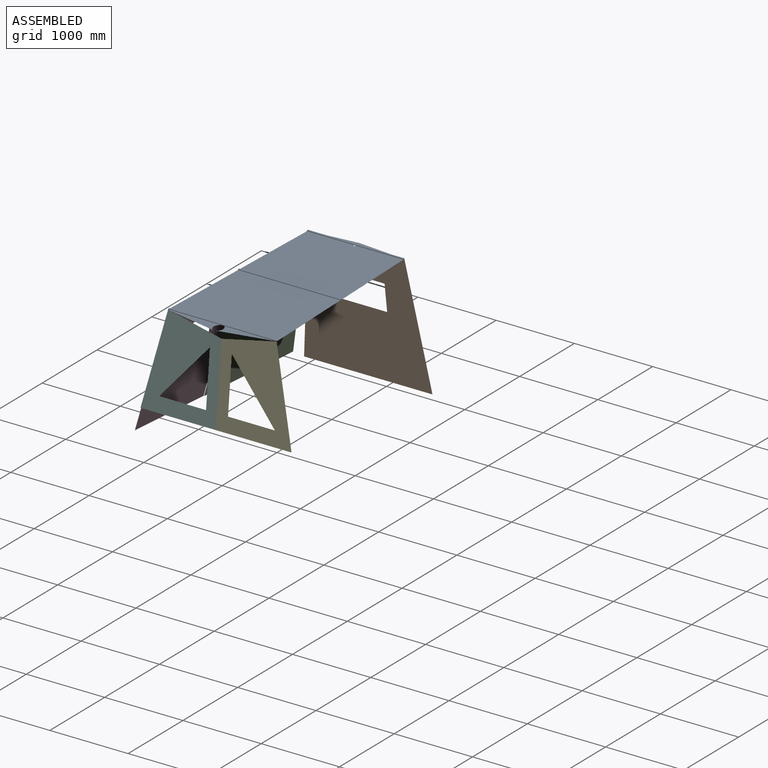
[diagram: assembled view]
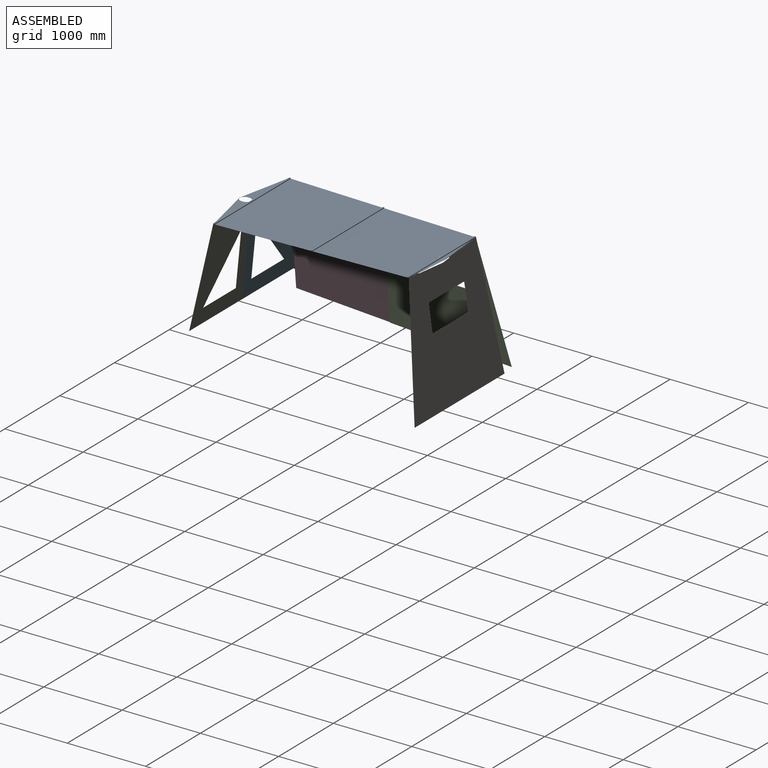
[diagram: assembled view, second angle]
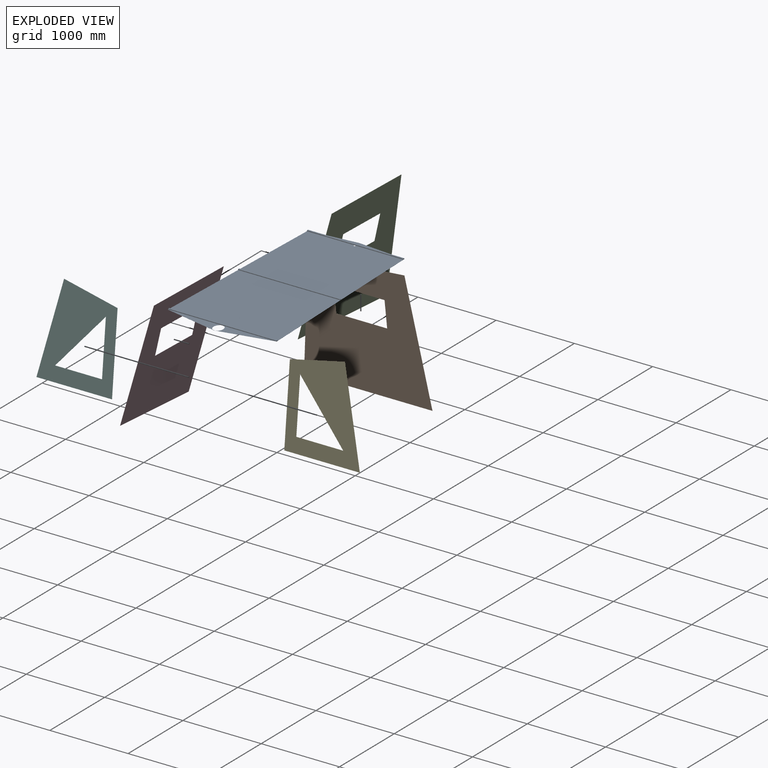
[diagram: exploded view]
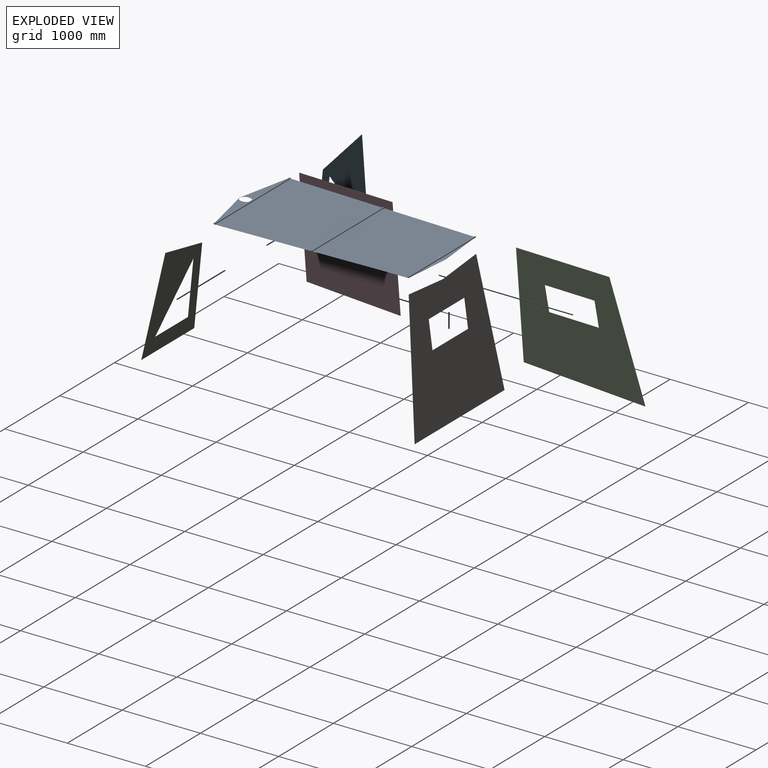
[diagram: exploded view, second angle]
FCSTD DOCUMENT  (FreeCAD 1.0R39319 (Git))
Label: cockpitzelt
License: All rights reserved
LicenseURL: https://en.wikipedia.org/wiki/All_rights_reserved
objects: TechDraw::DrawViewDimension×68, Sketcher::SketchObject×16, TechDraw::DrawViewAnnotation×11, TechDraw::DrawProjGroupItem×11, PartDesign::Pad×9, PartDesign::Pocket×7, PartDesign::Body×6, TechDraw::DrawSVGTemplate×5, TechDraw::DrawPage×5, TechDraw::DrawViewDimExtent×2, Assembly::JointGroup×1, Assembly::AssemblyObject×1, TechDraw::DrawProjGroup×1, App::DocumentObjectGroup×1
note: 186 computed .brp shape members not serialized (recipe doc carries the construction recipe); baked Part::Feature solids carry a one-line shape summary decoded from their .brp

FEATURE [Sketcher::SketchObject] Sketch  label="Dachskizze"
  ArcFitTolerance = 1e-06
  AttachmentOffset = pos=(0,0,0) rot=(0,0,1;1.5708rad)
  AttachmentSupport = -> [XY_Plane]
  FullyConstrained = true
  MakeInternals = false
  MapMode = 5
  Placement = pos=(0,0,0) rot=(0,0,1;1.5708rad)
  expr: .AttachmentOffset.Rotation.Angle = 90
  sketch-geometry (6):
    g0: LineSegment StartX=0 StartY=0 StartZ=0 EndX=144.716 EndY=693.89 EndZ=0
    g1: LineSegment StartX=2583.42 StartY=614.241 StartZ=0 EndX=144.716 EndY=693.89 EndZ=0
    g2: LineSegment StartX=0 StartY=0 StartZ=0 EndX=151.454 EndY=-692.45 EndZ=0
    g3: LineSegment StartX=2590.25 StartY=-615.741 StartZ=0 EndX=151.454 EndY=-692.45 EndZ=0
    g4: LineSegment StartX=2645 StartY=0 StartZ=0 EndX=2590.25 EndY=-615.741 EndZ=0
    g5: LineSegment StartX=2583.42 StartY=614.241 StartZ=0 EndX=2645 EndY=0 EndZ=0
  constraints (17):
    c: Coincident(g5,g1)
    c: Distance(g3) = 2440
    c: Distance(g1) = 2440
    c: Distance(g0,g4) = 2645
    c: Distance(g0,g2) = 708.82
    c: Distance(g0,g0) = 708.82
    c: PointOnObject(g4,g-1)
    c: Coincident(g0,g1)
    c: Coincident(g0,g2)
    c: Coincident(g0,g-1)
    c: Coincident(g3,g2)
    c: Coincident(g5,g4)
    c: Coincident(g3,g4)
    c: Distance(g1,g3) = 1230
    c: Distance(g5,g5) = 617.32
    c: Distance(g4,g3) = 618.17
    c: Angle(g0,g1) = 1.74376
FEATURE [PartDesign::Pad] Pad
  Direction = (0,0,1)
  Length = 1
  Length2 = 10
  Profile = -> Sketch
  ReferenceAxis = -> Sketch [N_Axis]
  Refine = true
  Suppressed = false
  Type = 0
FEATURE [TechDraw::DrawSVGTemplate] Template  label="Vorlage"
  EditableTexts = creator=Markus Nowatzki; date_of_issue=16/2/2026; general_tolerances=ISO 2768-m; identification_number=DN; language_code=EN; part_material=Masacril 330g/m²; revision_index=AAA; scale=1 : 1; sheet_number=1 / 5; title=Cockpitzelt Dach
  Height = 297
  Orientation = 1
  Template = <path>
  Width = 420
FEATURE [TechDraw::DrawViewAnnotation] Annotation  label="Vorn"
  Font = osifont
  LineSpace = 100
  LockPosition = false
  MaxWidth = -1
  Rotation = 0
  ScaleType = 0
  Text = Vorn
  TextSize = 5
  TextStyle = 0
  X = 50.9333
  Y = 269.946
FEATURE [TechDraw::DrawViewAnnotation] Annotation001  label="Achtern"
  Font = osifont
  LineSpace = 100
  LockPosition = false
  MaxWidth = -1
  Rotation = 0
  ScaleType = 0
  Text = Achtern
  TextSize = 5
  TextStyle = 0
  X = 385.929
  Y = 272.179
FEATURE [Sketcher::SketchObject] Sketch001  label="Mastausschnitt"
  ArcFitTolerance = 1e-06
  AttachmentOffset = pos=(0,0,0) rot=(0,0,1;1.5708rad)
  AttachmentSupport = -> [Pad]
  FullyConstrained = true
  MakeInternals = false
  MapMode = 5
  Placement = pos=(0,0,1) rot=(0,0,1;1.5708rad)
  sketch-geometry (5):
    g0: Ellipse CenterX=76.3 CenterY=0 CenterZ=0 NormalX=0 NormalY=0 NormalZ=1 MajorRadius=75 MinorRadius=60 AngleXU=0
    g1: LineSegment [constr] StartX=151.3 StartY=0 StartZ=0 EndX=1.3 EndY=0 EndZ=0
    g2: LineSegment [constr] StartX=76.3 StartY=60 StartZ=0 EndX=76.3 EndY=-60 EndZ=0
    g3: GeomPoint [constr] X=121.3 Y=0 Z=0
    g4: GeomPoint [constr] X=31.3 Y=0 Z=0
  constraints (6):
    c: InternalAlignment(g1-g4 -> g0) x4
    c: Distance(g2,g2) = 120
    c: Distance(g1,g1) = 150
    c: Distance(g-1,g1) = 1.3
    c: PointOnObject(g3,g-1)
    c: PointOnObject(g4,g-1)
FEATURE [Sketcher::SketchObject] Sketch002  label="Dirkauschnitt"
  ArcFitTolerance = 1e-06
  AttachmentOffset = pos=(0,0,0) rot=(0,0,1;1.5708rad)
  AttachmentSupport = -> [XY_Plane]
  FullyConstrained = true
  MakeInternals = false
  MapMode = 5
  Placement = pos=(0,0,0) rot=(0,0,1;1.5708rad)
  sketch-geometry (4):
    g0: LineSegment StartX=2560 StartY=10 StartZ=0 EndX=2590 EndY=10 EndZ=0
    g1: LineSegment StartX=2590 StartY=10 StartZ=0 EndX=2590 EndY=-10 EndZ=0
    g2: LineSegment StartX=2590 StartY=-10 StartZ=0 EndX=2560 EndY=-10 EndZ=0
    g3: ArcOfCircle CenterX=2560 CenterY=-1e-16 CenterZ=0 NormalX=0 NormalY=0 NormalZ=1 AngleXU=0 Radius=10 StartAngle=1.5708 EndAngle=4.71239
  constraints (11):
    c: Horizontal(g0)
    c: Coincident(g0,g1)
    c: Coincident(g1,g2)
    c: Horizontal(g2)
    c: Tangent(g2,g3) = 1.5708
    c: Coincident(g3,g0)
    c: DistanceY(g1,g1) = 20
    c: DistanceX(g0,g0) = 30
    c: Radius(g3) = 10
    c: Distance(g-1,g1) = 2590
    c: Symmetric(g0,g1,g-1)
FEATURE [PartDesign::Pocket] Pocket  label="Mastausschnitt001"
  BaseFeature = -> Pad
  Direction = (0,0,-1)
  Length = 5
  Length2 = 5
  Midplane = true
  Profile = -> Sketch001
  ReferenceAxis = -> Sketch001 [N_Axis]
  Refine = true
  Suppressed = false
  Type = 1
FEATURE [PartDesign::Pocket] Pocket001  label="Dirkausschnitt"
  BaseFeature = -> Pocket
  Direction = (0,0,-1)
  Length = 5
  Length2 = 5
  Midplane = true
  Profile = -> Sketch002
  ReferenceAxis = -> Sketch002 [N_Axis]
  Refine = true
  Suppressed = false
  Type = 1
FEATURE [Sketcher::SketchObject] Sketch003  label="Dachstange vorn"
  ArcFitTolerance = 1e-06
  AttachmentOffset = pos=(0,0,0) rot=(0,0,1;1.5708rad)
  AttachmentSupport = -> [XY_Plane]
  FullyConstrained = true
  MakeInternals = false
  MapMode = 5
  Placement = pos=(0,0,0) rot=(0,0,1;1.5708rad)
  sketch-geometry (4):
    g0: LineSegment StartX=150 StartY=692.5 StartZ=0 EndX=150 EndY=-692.5 EndZ=0
    g1: LineSegment StartX=150 StartY=692.5 StartZ=0 EndX=170 EndY=692.5 EndZ=0
    g2: LineSegment StartX=170 StartY=692.5 StartZ=0 EndX=170 EndY=-692.5 EndZ=0
    g3: LineSegment StartX=170 StartY=-692.5 StartZ=0 EndX=150 EndY=-692.5 EndZ=0
  constraints (11):
    c: DistanceY(g0,g0) = 1385
    c: Symmetric(g0,g0,g-1)
    c: DistanceX(g-1,g0) = 150
    c: Coincident(g0,g1)
    c: Horizontal(g1)
    c: Coincident(g1,g2)
    c: Vertical(g2)
    c: Coincident(g2,g3)
    c: Coincident(g3,g0)
    c: Horizontal(g3)
    c: DistanceX(g0,g1) = 20
FEATURE [PartDesign::Pad] Pad001  label="Stange Vorn"
  BaseFeature = -> Pocket001
  Direction = (0,0,1)
  Length = 10
  Length2 = 10
  Profile = -> Sketch003
  ReferenceAxis = -> Sketch003 [N_Axis]
  Refine = true
  Suppressed = false
  Type = 0
FEATURE [Sketcher::SketchObject] Sketch004  label="Dachstange Mitte"
  ArcFitTolerance = 1e-06
  AttachmentOffset = pos=(0,0,0) rot=(0,0,1;1.5708rad)
  AttachmentSupport = -> [XY_Plane]
  FullyConstrained = true
  MakeInternals = false
  MapMode = 5
  Placement = pos=(0,0,0) rot=(0,0,1;1.5708rad)
  sketch-geometry (4):
    g0: LineSegment StartX=1370 StartY=655 StartZ=0 EndX=1370 EndY=-655 EndZ=0
    g1: LineSegment StartX=1370 StartY=-655 StartZ=0 EndX=1390 EndY=-655 EndZ=0
    g2: LineSegment StartX=1390 StartY=-655 StartZ=0 EndX=1390 EndY=655 EndZ=0
    g3: LineSegment StartX=1390 StartY=655 StartZ=0 EndX=1370 EndY=655 EndZ=0
  constraints (11):
    c: Coincident(g0,g1)
    c: Coincident(g1,g2)
    c: Coincident(g2,g3)
    c: Coincident(g3,g0)
    c: Vertical(g2)
    c: Horizontal(g1)
    c: Horizontal(g3)
    c: DistanceY(g2,g2) = 1310
    c: DistanceX(g3,g3) = 20
    c: Symmetric(g0,g0,g-1)
    c: DistanceX(g-1,g0) = 1370
FEATURE [Sketcher::SketchObject] Sketch005  label="Dachstange Achtern"
  ArcFitTolerance = 1e-06
  AttachmentOffset = pos=(0,0,0) rot=(0,0,1;1.5708rad)
  AttachmentSupport = -> [XY_Plane]
  FullyConstrained = true
  MakeInternals = false
  MapMode = 5
  Placement = pos=(0,0,0) rot=(0,0,1;1.5708rad)
  sketch-geometry (4):
    g0: LineSegment StartX=2570 StartY=615 StartZ=0 EndX=2570 EndY=-615 EndZ=0
    g1: LineSegment StartX=2570 StartY=-615 StartZ=0 EndX=2590 EndY=-615 EndZ=0
    g2: LineSegment StartX=2590 StartY=-615 StartZ=0 EndX=2590 EndY=615 EndZ=0
    g3: LineSegment StartX=2590 StartY=615 StartZ=0 EndX=2570 EndY=615 EndZ=0
  constraints (11):
    c: Coincident(g0,g1)
    c: Coincident(g1,g2)
    c: Coincident(g2,g3)
    c: Coincident(g3,g0)
    c: Vertical(g2)
    c: Horizontal(g1)
    c: Horizontal(g3)
    c: Distance(g0,g2) = 20
    c: Distance(g1,g3) = 1230
    c: Symmetric(g0,g0,g-1)
    c: DistanceX(g-1,g2) = 2590
FEATURE [PartDesign::Pad] Pad002  label="Dachstange Achtern001"
  BaseFeature = -> Pad001
  Direction = (0,0,1)
  Length = 10
  Length2 = 10
  Profile = -> Sketch005
  ReferenceAxis = -> Sketch005 [N_Axis]
  Refine = true
  Suppressed = false
  Type = 0
FEATURE [PartDesign::Pad] Pad003  label="Dachstange Mitte001"
  BaseFeature = -> Pad002
  Direction = (0,0,1)
  Length = 10
  Length2 = 10
  Profile = -> Sketch004
  ReferenceAxis = -> Sketch004 [N_Axis]
  Refine = true
  Suppressed = false
  Type = 0
FEATURE [PartDesign::Body] Body  label="Dach"
  AllowCompound = false
  Group = -> [Sketch,Pad,Sketch001,Sketch002,Pocket,Pocket001,Sketch003,Pad001,Sketch004,Sketch005,Pad002,Pad003]
  Origin = -> Origin
  Tip = -> Pad003
FEATURE [Assembly::JointGroup] Joints
FEATURE [Sketcher::SketchObject] Sketch007
  ArcFitTolerance = 1e-06
  AttachmentSupport = -> [XZ_Plane003]
  FullyConstrained = true
  MakeInternals = false
  MapMode = 5
  Placement = pos=(0,0,0) rot=(1,0,0;1.5708rad)
  sketch-geometry (5):
    g0: LineSegment StartX=0 StartY=-55 StartZ=0 EndX=614.865 EndY=0 EndZ=0
    g1: LineSegment StartX=614.865 StartY=0 StartZ=0 EndX=820 EndY=-1606.96 EndZ=0
    g2: LineSegment StartX=820 StartY=-1606.96 StartZ=0 EndX=-820 EndY=-1606.96 EndZ=0
    g3: LineSegment StartX=-820 StartY=-1606.96 StartZ=0 EndX=-614.865 EndY=0 EndZ=0
    g4: LineSegment StartX=-614.865 StartY=0 StartZ=0 EndX=0 EndY=-55 EndZ=0
  constraints (15):
    c: Coincident(g0,g1)
    c: Coincident(g1,g2)
    c: Horizontal(g2)
    c: Coincident(g2,g3)
    c: Coincident(g3,g4)
    c: Coincident(g4,g0)
    c: Distance(g3,g3) = 1620
    c: Distance(g1,g1) = 1620
    c: Distance(g4,g4) = 617.32
    c: Distance(g0,g0) = 617.32
    c: DistanceX(g2,g2) = 1640
    c: PointOnObject(g3,g-1)
    c: PointOnObject(g0,g-1)
    c: PointOnObject(g0,g-2)
    c: DistanceY(g0,g-1) = 55
FEATURE [PartDesign::Pad] Pad005
  Direction = (0,-1,2e-16)
  Length = 1
  Length2 = 10
  Midplane = true
  Placement = pos=(0,0,0) rot=(1,0,0;1.5708rad)
  Profile = -> Sketch007
  ReferenceAxis = -> Sketch007 [N_Axis]
  Refine = true
  Suppressed = false
  Type = 0
FEATURE [Sketcher::SketchObject] Sketch008  label="Seitenwand-Achtern-Skizze"
  ArcFitTolerance = 1e-06
  AttachmentOffset = pos=(0,0,12) rot=(0,0,1;0rad)
  AttachmentSupport = -> [YZ_Plane004]
  FullyConstrained = true
  MakeInternals = false
  MapMode = 5
  Placement = pos=(12,0,0) rot=(0.57735,0.57735,0.57735;2.0944rad)
  sketch-geometry (4):
    g0: LineSegment StartX=1367.68 StartY=0 StartZ=0 EndX=1219.81 EndY=-1525.29 EndZ=0
    g1: LineSegment StartX=1219.81 StartY=-1525.29 StartZ=0 EndX=2797.73 EndY=-1606.32 EndZ=0
    g2: LineSegment StartX=2797.73 StartY=-1606.32 StartZ=0 EndX=2587.68 EndY=0 EndZ=0
    g3: LineSegment StartX=2587.68 StartY=0 StartZ=0 EndX=1367.68 EndY=0 EndZ=0
  constraints (12):
    c: PointOnObject(g0,g-1)
    c: PointOnObject(g2,g-1)
    c: Coincident(g0,g1)
    c: Coincident(g1,g2)
    c: Coincident(g2,g3)
    c: Coincident(g3,g0)
    c: Distance(g2,g2) = 1620
    c: Angle(g2,g1) = 1.38946
    c: DistanceX(g3,g3) = 1220
    c: Distance(g1) = 1580
    c: Distance(g0) = 1532.44
    c: DistanceX(g-1,g0) = 1367.68
FEATURE [Sketcher::SketchObject] Sketch009  label="Seitenwand-Vorn-Skizze"
  ArcFitTolerance = 1e-06
  AttachmentOffset = pos=(0,0,12) rot=(0,0,1;0rad)
  AttachmentSupport = -> [YZ_Plane005]
  FullyConstrained = true
  MakeInternals = false
  MapMode = 5
  Placement = pos=(12,0,0) rot=(0.57735,0.57735,0.57735;2.0944rad)
  sketch-geometry (4):
    g0: LineSegment StartX=150.084 StartY=0 StartZ=0 EndX=0 EndY=-1462.32 EndZ=0
    g1: LineSegment StartX=0 StartY=-1462.32 StartZ=0 EndX=1218.39 EndY=-1524.89 EndZ=0
    g2: LineSegment StartX=1218.39 StartY=-1524.89 StartZ=0 EndX=1370.08 EndY=0 EndZ=0
    g3: LineSegment StartX=1370.08 StartY=0 StartZ=0 EndX=150.084 EndY=0 EndZ=0
  constraints (12):
    c: PointOnObject(g0,g-1)
    c: PointOnObject(g2,g-1)
    c: PointOnObject(g0,g-2)
    c: Coincident(g0,g1)
    c: Coincident(g1,g2)
    c: Coincident(g2,g3)
    c: Coincident(g3,g0)
    c: Distance(g0,g0) = 1470
    c: Angle(g0,g3) = 1.67307
    c: Angle(g1,g0) = 1.51983
    c: DistanceX(g3,g3) = 1220
    c: Distance(g1,g1) = 1220
FEATURE [PartDesign::Pad] Pad006
  Direction = (1,0,0)
  Length = 1
  Length2 = 10
  Midplane = true
  Placement = pos=(0,0,0) rot=(1,1,1;2.0944rad)
  Profile = -> Sketch009
  ReferenceAxis = -> Sketch009 [N_Axis]
  Refine = true
  Suppressed = false
  Type = 0
FEATURE [PartDesign::Pad] Pad007
  Direction = (1,0,0)
  Length = 1
  Length2 = 10
  Midplane = true
  Placement = pos=(0,0,0) rot=(1,1,1;2.0944rad)
  Profile = -> Sketch008
  ReferenceAxis = -> Sketch008 [N_Axis]
  Refine = true
  Suppressed = false
  Type = 0
FEATURE [Sketcher::SketchObject] Sketch011
  ArcFitTolerance = 1e-06
  AttachmentSupport = -> [XZ_Plane003]
  FullyConstrained = true
  MakeInternals = false
  MapMode = 5
  Placement = pos=(0,0,0) rot=(1,0,0;1.5708rad)
  sketch-geometry (5):
    g0: LineSegment StartX=-325 StartY=-385 StartZ=0 EndX=-325 EndY=-735 EndZ=0
    g1: LineSegment StartX=-325 StartY=-735 StartZ=0 EndX=325 EndY=-735 EndZ=0
    g2: LineSegment StartX=325 StartY=-735 StartZ=0 EndX=325 EndY=-385 EndZ=0
    g3: LineSegment StartX=325 StartY=-385 StartZ=0 EndX=-325 EndY=-385 EndZ=0
    g4: GeomPoint X=0 Y=0 Z=0
  constraints (12):
    c: Coincident(g0,g1)
    c: Coincident(g1,g2)
    c: Coincident(g2,g3)
    c: Coincident(g3,g0)
    c: Vertical(g0)
    c: Vertical(g2)
    c: Horizontal(g1)
    c: Symmetric(g0,g2,g-2)
    c: DistanceX(g3,g3) = 650
    c: DistanceY(g2,g2) = 350
    c: Distance(g4,g3) = 385
    c: Coincident(g4,g-1)
FEATURE [PartDesign::Pocket] Pocket002  label="Fenster Achtern"
  BaseFeature = -> Pad005
  Direction = (0,1,-2e-16)
  Length = 5
  Length2 = 5
  Midplane = true
  Placement = pos=(0,0,0) rot=(1,0,0;1.5708rad)
  Profile = -> Sketch011
  ReferenceAxis = -> Sketch011 [N_Axis]
  Refine = true
  Suppressed = false
  Type = 1
FEATURE [PartDesign::Body] Body002  label="Heckwand"
  AllowCompound = false
  Group = -> [Sketch007,Pad005,Sketch011,Pocket002]
  Origin = -> Origin003
  Placement = pos=(0,2592.03,-0.417519) rot=(-1,0,0;6.14635rad)
  Tip = -> Pocket002
FEATURE [Sketcher::SketchObject] Sketch012
  ArcFitTolerance = 1e-06
  AttachmentSupport = -> [YZ_Plane004]
  FullyConstrained = true
  MakeInternals = false
  MapMode = 5
  Placement = pos=(0,0,0) rot=(0.57735,0.57735,0.57735;2.0944rad)
  sketch-geometry (4):
    g0: LineSegment StartX=1681.19 StartY=-385 StartZ=0 EndX=1681.19 EndY=-735 EndZ=0
    g1: LineSegment StartX=1681.19 StartY=-735 StartZ=0 EndX=2331.19 EndY=-735 EndZ=0
    g2: LineSegment StartX=2331.19 StartY=-735 StartZ=0 EndX=2331.19 EndY=-385 EndZ=0
    g3: LineSegment StartX=2331.19 StartY=-385 StartZ=0 EndX=1681.19 EndY=-385 EndZ=0
  constraints (12):
    c: Coincident(g0,g1)
    c: Coincident(g1,g2)
    c: Coincident(g2,g3)
    c: Coincident(g3,g0)
    c: Vertical(g0)
    c: Vertical(g2)
    c: Horizontal(g1)
    c: Horizontal(g3)
    c: DistanceX(g3,g3) = 650
    c: Distance(g2,g2) = 350
    c: DistanceY(g-1,g2) = -385
    c: DistanceX(g-2,g0) = 1681.19
FEATURE [PartDesign::Pocket] Pocket003  label="Fenster Seite Hinten"
  BaseFeature = -> Pad007
  Direction = (-1,0,0)
  Length = 5
  Length2 = 5
  Midplane = true
  Placement = pos=(0,0,0) rot=(1,1,1;2.0944rad)
  Profile = -> Sketch012
  ReferenceAxis = -> Sketch012 [N_Axis]
  Refine = true
  Suppressed = false
  Type = 1
FEATURE [PartDesign::Body] Body003  label="Seitenwand-Achtern"
  AllowCompound = false
  Group = -> [Sketch008,Pad007,Sketch012,Pocket003]
  Origin = -> Origin004
  Placement = pos=(-708,0.000244141,9.15527e-05) rot=(0.01555,0.989876,-0.141078;0.22179rad)
  Tip = -> Pocket003
FEATURE [Sketcher::SketchObject] Sketch013
  ArcFitTolerance = 1e-06
  AttachmentSupport = -> [YZ_Plane005]
  FullyConstrained = true
  MakeInternals = false
  MapMode = 5
  Placement = pos=(0,0,0) rot=(0.57735,0.57735,0.57735;2.0944rad)
  sketch-geometry (4):
    g0: LineSegment StartX=391.03 StartY=-385 StartZ=0 EndX=391.03 EndY=-735 EndZ=0
    g1: LineSegment StartX=391.03 StartY=-735 StartZ=0 EndX=1041.03 EndY=-735 EndZ=0
    g2: LineSegment StartX=1041.03 StartY=-735 StartZ=0 EndX=1041.03 EndY=-385 EndZ=0
    g3: LineSegment StartX=1041.03 StartY=-385 StartZ=0 EndX=391.03 EndY=-385 EndZ=0
  constraints (12):
    c: Coincident(g0,g1)
    c: Coincident(g1,g2)
    c: Coincident(g2,g3)
    c: Coincident(g3,g0)
    c: Vertical(g0)
    c: Vertical(g2)
    c: Horizontal(g1)
    c: Horizontal(g3)
    c: DistanceX(g3,g3) = 650
    c: DistanceY(g2,g2) = 350
    c: DistanceY(g-1,g2) = -385
    c: DistanceX(g-2,g0) = 391.03
FEATURE [PartDesign::Pocket] Pocket004
  BaseFeature = -> Pad006
  Direction = (-1,0,0)
  Length = 5
  Length2 = 5
  Midplane = true
  Placement = pos=(0,0,0) rot=(1,1,1;2.0944rad)
  Profile = -> Sketch013
  ReferenceAxis = -> Sketch013 [N_Axis]
  Refine = true
  Suppressed = false
  Type = 1
FEATURE [PartDesign::Body] Body004  label="Seitenwand-Vorn"
  AllowCompound = false
  Group = -> [Sketch009,Pad006,Sketch013,Pocket004]
  Origin = -> Origin005
  Placement = pos=(-701.185,-0.213935,-1.5829) rot=(0.015562,0.990608,-0.135846;0.230258rad)
  Tip = -> Pocket004
FEATURE [Sketcher::SketchObject] Sketch014  label="Vorderwand-Bb-Skizze"
  ArcFitTolerance = 1e-06
  AttachmentSupport = -> [XZ_Plane007]
  FullyConstrained = true
  MakeInternals = false
  MapMode = 5
  Placement = pos=(0,0,0) rot=(1,0,0;1.5708rad)
  sketch-geometry (4):
    g0: LineSegment StartX=0 StartY=-148.09 StartZ=0 EndX=693.178 EndY=0 EndZ=0
    g1: LineSegment StartX=693.178 StartY=0 StartZ=0 EndX=965 EndY=-1168.81 EndZ=0
    g2: LineSegment StartX=965 StartY=-1168.81 StartZ=0 EndX=0 EndY=-1168.81 EndZ=0
    g3: LineSegment StartX=0 StartY=-1168.81 StartZ=0 EndX=0 EndY=-148.09 EndZ=0
  constraints (12):
    c: Coincident(g0,g1)
    c: Coincident(g1,g2)
    c: PointOnObject(g2,g-2)
    c: Horizontal(g2)
    c: PointOnObject(g0,g-2)
    c: PointOnObject(g0,g-1)
    c: Coincident(g3,g2)
    c: Coincident(g3,g0)
    c: Distance(g3) = 1020.72
    c: Distance(g2) = 965
    c: Distance(g0) = 708.82
    c: Distance(g-1,g0) = 148.09
FEATURE [Sketcher::SketchObject] Sketch015  label="Vorderwand-Sb-Skizze"
  ArcFitTolerance = 1e-06
  AttachmentSupport = -> [XZ_Plane008]
  FullyConstrained = true
  MakeInternals = false
  MapMode = 5
  Placement = pos=(0,0,0) rot=(1,0,0;1.5708rad)
  sketch-geometry (4):
    g0: LineSegment StartX=0 StartY=-1168.81 StartZ=0 EndX=-965 EndY=-1168.81 EndZ=0
    g1: LineSegment StartX=-965 StartY=-1168.81 StartZ=0 EndX=-693.178 EndY=0.00226827 EndZ=0
    g2: LineSegment StartX=-693.178 StartY=0.00226827 StartZ=0 EndX=0 EndY=-148.086 EndZ=0
    g3: LineSegment StartX=0 StartY=-148.086 StartZ=0 EndX=0 EndY=-1168.81 EndZ=0
  constraints (12):
    c: PointOnObject(g0,g-2)
    c: Horizontal(g0)
    c: Coincident(g0,g1)
    c: Coincident(g1,g2)
    c: DistanceX(g0,g0) = 965
    c: Distance(g1,g1) = 1200
    c: Distance(g2,g2) = 708.82
    c: PointOnObject(g2,g-2)
    c: DistanceY(g2,g-1) = 148.086
    c: Coincident(g3,g2)
    c: Coincident(g3,g0)
    c: Distance(g3) = 1020.72
FEATURE [PartDesign::Pad] Pad009
  Direction = (0,-1,2e-16)
  Length = 1
  Length2 = 10
  Midplane = true
  Placement = pos=(0,0,0) rot=(1,0,0;1.5708rad)
  Profile = -> Sketch014
  ReferenceAxis = -> Sketch014 [N_Axis]
  Refine = true
  Suppressed = false
  Type = 0
FEATURE [PartDesign::Pad] Pad010
  Direction = (0,-1,2e-16)
  Length = 1
  Length2 = 10
  Midplane = true
  Placement = pos=(0,0,0) rot=(1,0,0;1.5708rad)
  Profile = -> Sketch015
  ReferenceAxis = -> Sketch015 [N_Axis]
  Refine = true
  Suppressed = false
  Type = 0
FEATURE [Sketcher::SketchObject] Sketch017
  ArcFitTolerance = 1e-06
  AttachmentSupport = -> [XZ_Plane008]
  FullyConstrained = true
  MakeInternals = false
  MapMode = 5
  Placement = pos=(0,0,0) rot=(1,0,0;1.5708rad)
  sketch-geometry (3):
    g0: LineSegment StartX=-740 StartY=-981.16 StartZ=0 EndX=-140 EndY=-281.16 EndZ=0
    g1: LineSegment StartX=-140 StartY=-281.16 StartZ=0 EndX=-140 EndY=-981.16 EndZ=0
    g2: LineSegment StartX=-140 StartY=-981.16 StartZ=0 EndX=-740 EndY=-981.16 EndZ=0
  constraints (9):
    c: Coincident(g0,g1)
    c: Coincident(g1,g2)
    c: Coincident(g2,g0)
    c: Horizontal(g2)
    c: Distance(g2) = 600
    c: Distance(g1) = 700
    c: Perpendicular(g1,g2)
    c: DistanceX(g-2,g0) = -140
    c: DistanceY(g-1,g0) = -281.16
FEATURE [PartDesign::Pocket] Pocket005
  BaseFeature = -> Pad010
  Direction = (0,1,-2e-16)
  Length = 5
  Length2 = 5
  Midplane = true
  Placement = pos=(0,0,0) rot=(1,0,0;1.5708rad)
  Profile = -> Sketch017
  ReferenceAxis = -> Sketch017 [N_Axis]
  Refine = true
  Suppressed = false
  Type = 1
FEATURE [PartDesign::Body] Body007  label="Vorderwand-Sb"
  AllowCompound = false
  Group = -> [Sketch015,Pad010,Sketch017,Pocket005]
  Origin = -> Origin008
  Placement = pos=(0,148.8,0) rot=(1,0,0;6.1837rad)
  Tip = -> Pocket005
FEATURE [Sketcher::SketchObject] Sketch018
  ArcFitTolerance = 1e-06
  AttachmentSupport = -> [XZ_Plane007]
  FullyConstrained = true
  MakeInternals = false
  MapMode = 5
  Placement = pos=(0,0,0) rot=(1,0,0;1.5708rad)
  sketch-geometry (3):
    g0: LineSegment StartX=740 StartY=-981.16 StartZ=0 EndX=140 EndY=-281.16 EndZ=0
    g1: LineSegment StartX=140 StartY=-281.16 StartZ=0 EndX=140 EndY=-981.16 EndZ=0
    g2: LineSegment StartX=140 StartY=-981.16 StartZ=0 EndX=740 EndY=-981.16 EndZ=0
  constraints (9):
    c: Coincident(g0,g1)
    c: Coincident(g1,g2)
    c: Coincident(g2,g0)
    c: Horizontal(g2)
    c: Distance(g1) = 700
    c: Perpendicular(g1,g2)
    c: DistanceX(g-2,g0) = 140
    c: DistanceY(g-1,g0) = -281.16
    c: Distance(g2) = 600
FEATURE [PartDesign::Pocket] Pocket006
  BaseFeature = -> Pad009
  Direction = (0,1,-2e-16)
  Length = 5
  Length2 = 5
  Midplane = true
  Placement = pos=(0,0,0) rot=(1,0,0;1.5708rad)
  Profile = -> Sketch018
  ReferenceAxis = -> Sketch018 [N_Axis]
  Refine = true
  Suppressed = false
  Type = 1
FEATURE [PartDesign::Body] Body006  label="Vorderwand-Bb"
  AllowCompound = false
  Group = -> [Sketch014,Pad009,Sketch018,Pocket006]
  Origin = -> Origin007
  Placement = pos=(0,148.8,0) rot=(1,0,0;6.18318rad)
  Tip = -> Pocket006
FEATURE [Assembly::AssemblyObject] Assembly  label="Cockpitzelt"
  Group = -> [Joints,Body,Body002,Body003,Body004,Body006,Body007]
  Origin = -> Origin002
  Type = Assembly
FEATURE [TechDraw::DrawProjGroupItem] View  label="Dachansicht"
  CoarseView = false
  Direction = (0,0,1)
  Focus = 100
  HardHidden = false
  IsoCount = 0
  IsoHidden = false
  IsoVisible = false
  LockPosition = false
  Perspective = false
  Rotation = 0
  RotationVector = (1,0,0)
  Scale = 0.1
  ScaleType = 2
  ScrubCount = 1
  SeamHidden = false
  SeamVisible = false
  SmoothHidden = false
  SmoothVisible = true
  Source = -> [Body]
  Type = 0
  X = 206.069
  XDirection = (-2e-16,1,0)
  Y = 169.07
FEATURE [TechDraw::DrawViewDimension] Dimension  label="Maß"
  AngleOverride = false
  Arbitrary = false
  ArbitraryTolerances = false
  BoxCorners = (2) [(-132.25,-69.3195,-1e-07),(132.25,69.3195,1e-07)]
  EqualTolerance = true
  ExtensionAngle = 0
  FormatSpec = %.0w
  FormatSpecOverTolerance = %+.2w
  FormatSpecUnderTolerance = %+.2w
  Inverted = false
  LineAngle = 0
  LockPosition = false
  MeasureType = 1
  OverTolerance = 0
  References2D = -> [View]
  Rotation = 0
  ScaleType = 0
  TheoreticalExact = false
  Type = 0
  UnderTolerance = 0
  X = -141.39
  Y = 34.9533
FEATURE [TechDraw::DrawViewDimExtent] DimExtent
  AngleOverride = false
  Arbitrary = false
  ArbitraryTolerances = false
  BoxCorners = (2) [(-132.25,-69.3195,-1e-07),(132.25,69.3195,1e-07)]
  DirExtent = 1
  EqualTolerance = true
  ExtensionAngle = 0
  FormatSpec = %.0w
  FormatSpecOverTolerance = %+.2w
  FormatSpecUnderTolerance = %+.2w
  Inverted = false
  LineAngle = 0
  LockPosition = false
  MeasureType = 1
  OverTolerance = 0
  References2D = -> [View]
  Rotation = 0
  ScaleType = 0
  Source = -> [View]
  TheoreticalExact = false
  Type = 2
  UnderTolerance = 0
  X = -158.583
  Y = 18.9835
FEATURE [TechDraw::DrawViewDimension] Dimension001  label="Maß001"
  AngleOverride = false
  Arbitrary = false
  ArbitraryTolerances = false
  BoxCorners = (2) [(-132.25,-69.3195,-1e-07),(132.25,69.3195,1e-07)]
  EqualTolerance = true
  ExtensionAngle = 0
  FormatSpec = %.0w
  FormatSpecOverTolerance = %+.2w
  FormatSpecUnderTolerance = %+.2w
  Inverted = false
  LineAngle = 0
  LockPosition = false
  MeasureType = 1
  OverTolerance = 0
  References2D = -> [View]
  Rotation = 0
  ScaleType = 0
  TheoreticalExact = false
  Type = 1
  UnderTolerance = 0
  X = 5.59805
  Y = -90.7233
FEATURE [TechDraw::DrawViewDimension] Dimension002  label="Maß002"
  AngleOverride = false
  Arbitrary = false
  ArbitraryTolerances = false
  BoxCorners = (2) [(-132.25,-69.3195,-1e-07),(132.25,69.3195,1e-07)]
  EqualTolerance = true
  ExtensionAngle = 0
  FormatSpec = %.0w
  FormatSpecOverTolerance = %+.2w
  FormatSpecUnderTolerance = %+.2w
  Inverted = false
  LineAngle = 0
  LockPosition = false
  MeasureType = 1
  OverTolerance = 0
  References2D = -> [View]
  Rotation = 0
  ScaleType = 0
  TheoreticalExact = false
  Type = 1
  UnderTolerance = 0
  X = 4.48583
  Y = 113.648
FEATURE [TechDraw::DrawViewDimension] Dimension004  label="Maß004"
  AngleOverride = false
  Arbitrary = true
  ArbitraryTolerances = false
  BoxCorners = (2) [(-132.25,-69.3195,-1e-07),(132.25,69.3195,1e-07)]
  EqualTolerance = true
  ExtensionAngle = 0
  FormatSpec = 1220
  FormatSpecOverTolerance = %+.0w
  FormatSpecUnderTolerance = %+.0w
  Inverted = false
  LineAngle = 0
  LockPosition = false
  MeasureType = 1
  OverTolerance = 0
  References2D = -> [View]
  Rotation = 0
  ScaleType = 0
  TheoreticalExact = false
  Type = 0
  UnderTolerance = 0
  X = 66.497
  Y = 86.2147
FEATURE [TechDraw::DrawViewDimension] Dimension005  label="Maß005"
  AngleOverride = false
  Arbitrary = true
  ArbitraryTolerances = false
  BoxCorners = (2) [(-132.25,-69.3195,-1e-07),(132.25,69.3195,1e-07)]
  EqualTolerance = true
  ExtensionAngle = 0
  FormatSpec = 1220
  FormatSpecOverTolerance = 1220
  FormatSpecUnderTolerance = 1220
  Inverted = false
  LineAngle = 0
  LockPosition = false
  MeasureType = 1
  OverTolerance = 0
  References2D = -> [View]
  Rotation = 0
  ScaleType = 0
  TheoreticalExact = false
  Type = 0
  UnderTolerance = 0
  X = -55.5564
  Y = 89.8715
FEATURE [TechDraw::DrawViewDimension] Dimension006  label="Maß006"
  AngleOverride = false
  Arbitrary = false
  ArbitraryTolerances = false
  BoxCorners = (2) [(-132.25,-69.3195,-1e-07),(132.25,69.3195,1e-07)]
  EqualTolerance = true
  ExtensionAngle = 0
  FormatSpec = %.0w
  FormatSpecOverTolerance = %+.0w
  FormatSpecUnderTolerance = %+.0w
  Inverted = false
  LineAngle = 0
  LockPosition = false
  MeasureType = 1
  OverTolerance = 0
  References2D = -> [View]
  Rotation = 0
  ScaleType = 0
  TheoreticalExact = false
  Type = 2
  UnderTolerance = 0
  X = -101.938
  Y = -23.5489
FEATURE [TechDraw::DrawViewDimension] Dimension007  label="Maß007"
  AngleOverride = false
  Arbitrary = false
  ArbitraryTolerances = false
  BoxCorners = (2) [(-132.25,-69.3195,-1e-07),(132.25,69.3195,1e-07)]
  EqualTolerance = true
  ExtensionAngle = 0
  FormatSpec = %.0w
  FormatSpecOverTolerance = %+.0w
  FormatSpecUnderTolerance = %+.0w
  Inverted = false
  LineAngle = 0
  LockPosition = false
  MeasureType = 1
  OverTolerance = 0
  References2D = -> [View]
  Rotation = 0
  ScaleType = 0
  TheoreticalExact = false
  Type = 2
  UnderTolerance = 0
  X = -13.5864
  Y = -25.6711
FEATURE [TechDraw::DrawViewDimension] Dimension008  label="Maß008"
  AngleOverride = false
  Arbitrary = false
  ArbitraryTolerances = false
  BoxCorners = (2) [(-132.25,-69.3195,-1e-07),(132.25,69.3195,1e-07)]
  EqualTolerance = true
  ExtensionAngle = 0
  FormatSpec = %.0w
  FormatSpecOverTolerance = %+.0w
  FormatSpecUnderTolerance = %+.0w
  Inverted = false
  LineAngle = 0
  LockPosition = false
  MeasureType = 1
  OverTolerance = 0
  References2D = -> [View]
  Rotation = 0
  ScaleType = 0
  TheoreticalExact = false
  Type = 2
  UnderTolerance = 0
  X = 145.708
  Y = -0.069485
FEATURE [TechDraw::DrawViewDimension] Dimension009  label="Maß009"
  AngleOverride = false
  Arbitrary = false
  ArbitraryTolerances = false
  BoxCorners = (2) [(-132.25,-69.3195,-1e-07),(132.25,69.3195,1e-07)]
  EqualTolerance = true
  ExtensionAngle = 0
  FormatSpec = %.0w
  FormatSpecOverTolerance = %+.0w
  FormatSpecUnderTolerance = %+.0w
  Inverted = false
  LineAngle = 0
  LockPosition = false
  MeasureType = 1
  OverTolerance = 0
  References2D = -> [View]
  Rotation = 0
  ScaleType = 0
  TheoreticalExact = false
  Type = 0
  UnderTolerance = 0
  X = 15.3663
  Y = 55.0374
FEATURE [TechDraw::DrawViewDimension] Dimension010  label="Maß010"
  AngleOverride = false
  Arbitrary = false
  ArbitraryTolerances = false
  BoxCorners = (2) [(-132.25,-69.3195,-1e-07),(132.25,69.3195,1e-07)]
  EqualTolerance = true
  ExtensionAngle = 0
  FormatSpec = %.0w
  FormatSpecOverTolerance = %+.0w
  FormatSpecUnderTolerance = %+.0w
  Inverted = false
  LineAngle = 0
  LockPosition = false
  MeasureType = 1
  OverTolerance = 0
  References2D = -> [View]
  Rotation = 0
  ScaleType = 0
  TheoreticalExact = false
  Type = 0
  UnderTolerance = 0
  X = 112.342
  Y = 55.0374
FEATURE [TechDraw::DrawViewDimension] Dimension011  label="Maß011"
  AngleOverride = false
  Arbitrary = false
  ArbitraryTolerances = false
  BoxCorners = (2) [(-132.25,-69.3195,-1e-07),(132.25,69.3195,1e-07)]
  EqualTolerance = true
  ExtensionAngle = 0
  FormatSpec = %.0w
  FormatSpecOverTolerance = %+.0w
  FormatSpecUnderTolerance = %+.0w
  Inverted = false
  LineAngle = 0
  LockPosition = false
  MeasureType = 1
  OverTolerance = 0
  References2D = -> [View]
  Rotation = 0
  ScaleType = 0
  TheoreticalExact = false
  Type = 0
  UnderTolerance = 0
  X = -105.4
  Y = 57.3031
FEATURE [TechDraw::DrawViewDimExtent] DimExtent001
  AngleOverride = false
  Arbitrary = false
  ArbitraryTolerances = false
  BoxCorners = (2) [(-132.25,-69.3195,-1e-07),(132.25,69.3195,1e-07)]
  DirExtent = 0
  EqualTolerance = true
  ExtensionAngle = 0
  FormatSpec = %.0w
  FormatSpecOverTolerance = %+.0w
  FormatSpecUnderTolerance = %+.0w
  Inverted = false
  LineAngle = 0
  LockPosition = false
  MeasureType = 1
  OverTolerance = 0
  References2D = -> [View]
  Rotation = 0
  ScaleType = 0
  Source = -> [View]
  TheoreticalExact = false
  Type = 1
  UnderTolerance = 0
  X = 110.752
  Y = 15.9137
FEATURE [TechDraw::DrawViewDimension] Dimension012  label="Maß012"
  AngleOverride = false
  Arbitrary = false
  ArbitraryTolerances = false
  BoxCorners = (2) [(-132.25,-69.3195,-1e-07),(132.25,69.3195,1e-07)]
  EqualTolerance = true
  ExtensionAngle = 0
  FormatSpec = %.0w
  FormatSpecOverTolerance = %+.0w
  FormatSpecUnderTolerance = %+.0w
  Inverted = false
  LineAngle = 0
  LockPosition = false
  MeasureType = 1
  OverTolerance = 0
  References2D = -> [View]
  Rotation = 0
  ScaleType = 0
  TheoreticalExact = false
  Type = 2
  UnderTolerance = 0
  X = 93.2627
  Y = -7.44003
FEATURE [TechDraw::DrawViewAnnotation] Annotation002  label="Stange1"
  Font = osifont
  LineSpace = 100
  LockPosition = false
  MaxWidth = -1
  Rotation = 90
  ScaleType = 0
  Text = Stange
  TextSize = 5
  TextStyle = 0
  X = 98.925
  Y = 140.956
FEATURE [TechDraw::DrawViewAnnotation] Annotation004  label="Stange2"
  Font = osifont
  LineSpace = 100
  LockPosition = false
  MaxWidth = -1
  Rotation = 90
  ScaleType = 0
  Text = Stange
  TextSize = 5
  TextStyle = 0
  X = 219.275
  Y = 140.956
FEATURE [TechDraw::DrawViewAnnotation] Annotation005  label="Stange3"
  Font = osifont
  LineSpace = 100
  LockPosition = false
  MaxWidth = -1
  Rotation = 90
  ScaleType = 0
  Text = Stange
  TextSize = 5
  TextStyle = 0
  X = 324.889
  Y = 138.294
FEATURE [TechDraw::DrawSVGTemplate] Template001  label="Vorlage001"
  EditableTexts = creator=Markus Nowatzki; date_of_issue=16.02.26; general_tolerances=ISO 2768-m; identification_number=DN; language_code=EN; part_material=Masacril 330g/m²; revision_index=AAA; scale=1 : 10; sheet_number=2 / 5; title=Cockpitzelt Front
  Height = 297
  Orientation = 1
  Template = <path>
  Width = 420
FEATURE [TechDraw::DrawSVGTemplate] Template002  label="Vorlage002"
  EditableTexts = creator=Markus Nowatzki; date_of_issue=16.02.26; general_tolerances=ISO 2768-m; identification_number=DN; language_code=EN; part_material=Masacril 330g/m²; revision_index=AAA; scale=1 : 1; sheet_number=3 / 5; title=Cockpitzelt Seite
  Height = 297
  Orientation = 1
  Template = <path>
  Width = 420
FEATURE [TechDraw::DrawSVGTemplate] Template003  label="Vorlage003"
  EditableTexts = creator=Markus Nowatzki; date_of_issue=16.02.26; general_tolerances=ISO 2768-m; identification_number=DN; language_code=EN; part_material=Masacril 330g/m²; revision_index=AAA; scale=1 : 1; sheet_number=4 / 5; title=Cockpitzelt Seite
  Height = 297
  Orientation = 1
  Template = <path>
  Width = 420
FEATURE [TechDraw::DrawSVGTemplate] Template004  label="Vorlage004"
  EditableTexts = creator=Markus Nowatzki; date_of_issue=16.02.26; general_tolerances=ISO 2768-m; identification_number=DN; language_code=EN; part_material=Masacril 330g/m²; revision_index=AAA; scale=1 : 30; sheet_number=5 / 5; title=Cockpitzelt Heck
  Height = 297
  Orientation = 1
  Template = <path>
  Width = 420
FEATURE [TechDraw::DrawProjGroupItem] View001
  CoarseView = false
  Direction = (0,-1,0)
  Focus = 100
  HardHidden = false
  IsoCount = 0
  IsoHidden = false
  IsoVisible = false
  LockPosition = false
  Perspective = false
  Rotation = 0
  RotationVector = (1,0,0)
  Scale = 0.1
  ScaleType = 2
  ScrubCount = 1
  SeamHidden = false
  SeamVisible = false
  SmoothHidden = false
  SmoothVisible = true
  Source = -> [Body006]
  Type = 0
  X = 258.256
  XDirection = (1,0,0)
  Y = 164.792
FEATURE [TechDraw::DrawProjGroupItem] View002
  CoarseView = false
  Direction = (0,-1,0)
  Focus = 100
  HardHidden = false
  IsoCount = 0
  IsoHidden = false
  IsoVisible = false
  LockPosition = false
  Perspective = false
  Rotation = 0
  RotationVector = (1,0,0)
  Scale = 0.1
  ScaleType = 2
  ScrubCount = 1
  SeamHidden = false
  SeamVisible = false
  SmoothHidden = false
  SmoothVisible = true
  Source = -> [Body007]
  Type = 0
  X = 119.445
  XDirection = (1,0,0)
  Y = 164.792
FEATURE [TechDraw::DrawViewDimension] Dimension013  label="Maß013"
  AngleOverride = false
  Arbitrary = true
  ArbitraryTolerances = false
  BoxCorners = (2) [(-132.25,-69.3195,-1e-07),(132.25,69.3195,1e-07)]
  EqualTolerance = true
  ExtensionAngle = 0
  FormatSpec = 1370
  FormatSpecOverTolerance = %+.0w
  FormatSpecUnderTolerance = %+.0w
  Inverted = false
  LineAngle = 0
  LockPosition = false
  MeasureType = 1
  OverTolerance = 0
  References2D = -> [View]
  Rotation = 0
  ScaleType = 0
  TheoreticalExact = false
  Type = 2
  UnderTolerance = 0
  X = -172.624
  Y = 4.89949
FEATURE [TechDraw::DrawViewDimension] Dimension014  label="Maß014"
  AngleOverride = false
  Arbitrary = false
  ArbitraryTolerances = false
  BoxCorners = (2) [(-132.25,-69.3195,-1e-07),(132.25,69.3195,1e-07)]
  EqualTolerance = true
  ExtensionAngle = 0
  FormatSpec = %.0w
  FormatSpecOverTolerance = %+.0w
  FormatSpecUnderTolerance = %+.0w
  Inverted = false
  LineAngle = 0
  LockPosition = false
  MeasureType = 1
  OverTolerance = 0
  References2D = -> [View]
  Rotation = 0
  ScaleType = 0
  TheoreticalExact = false
  Type = 2
  UnderTolerance = 0
  X = 100.793
  Y = -26.4064
FEATURE [TechDraw::DrawProjGroupItem] View003
  CoarseView = false
  Direction = (-1,-1e-16,0)
  Focus = 100
  HardHidden = false
  IsoCount = 0
  IsoHidden = false
  IsoVisible = false
  LockPosition = false
  Perspective = false
  Rotation = 0
  RotationVector = (1,0,0)
  Scale = 0.1
  ScaleType = 2
  ScrubCount = 1
  SeamHidden = false
  SeamVisible = false
  SmoothHidden = false
  SmoothVisible = true
  Source = -> [Body003,Body004]
  Type = 0
  X = 209.296
  XDirection = (1e-16,-1,0)
  Y = 153.427
FEATURE [TechDraw::DrawViewAnnotation] Annotation006  label="Vorn001"
  Font = osifont
  LineSpace = 100
  LockPosition = false
  MaxWidth = -1
  Rotation = 0
  ScaleType = 0
  Text = Vorn
  TextSize = 5
  TextStyle = 0
  X = 376.021
  Y = 265.4
FEATURE [TechDraw::DrawViewAnnotation] Annotation007  label="Achtern001"
  Font = osifont
  LineSpace = 100
  LockPosition = false
  MaxWidth = -1
  Rotation = 0
  ScaleType = 0
  Text = Achtern
  TextSize = 5
  TextStyle = 0
  X = 49.474
  Y = 266.875
FEATURE [TechDraw::DrawViewAnnotation] Annotation008  label="Steuerbord"
  Font = osifont
  LineSpace = 100
  LockPosition = false
  MaxWidth = -1
  Rotation = 0
  ScaleType = 0
  Text = Steuerbord
  TextSize = 5
  TextStyle = 0
  X = 50.9333
  Y = 269.946
FEATURE [TechDraw::DrawViewAnnotation] Annotation009  label="Backbord"
  Font = osifont
  LineSpace = 100
  LockPosition = false
  MaxWidth = -1
  Rotation = 0
  ScaleType = 0
  Text = Backbord
  TextSize = 5
  TextStyle = 0
  X = 386.29
  Y = 272.541
FEATURE [TechDraw::DrawViewAnnotation] Annotation010  label="Steuerbord001"
  Font = osifont
  LineSpace = 100
  LockPosition = false
  MaxWidth = -1
  Rotation = 0
  ScaleType = 0
  Text = Steuerbord
  TextSize = 5
  TextStyle = 0
  X = 374.396
  Y = 267.414
FEATURE [TechDraw::DrawViewAnnotation] Annotation011  label="Backbord001"
  Font = osifont
  LineSpace = 100
  LockPosition = false
  MaxWidth = -1
  Rotation = 0
  ScaleType = 0
  Text = Backbord
  TextSize = 5
  TextStyle = 0
  X = 56.3152
  Y = 271.094
FEATURE [TechDraw::DrawProjGroupItem] View004
  CoarseView = false
  Direction = (0,-1,0)
  Focus = 100
  HardHidden = false
  IsoCount = 0
  IsoHidden = false
  IsoVisible = false
  LockPosition = false
  Perspective = false
  Rotation = 0
  RotationVector = (1,0,0)
  Scale = 0.1
  ScaleType = 2
  ScrubCount = 1
  SeamHidden = false
  SeamVisible = false
  SmoothHidden = false
  SmoothVisible = true
  Source = -> [Body002]
  Type = 0
  X = 218.336
  XDirection = (1,0,0)
  Y = 168.581
FEATURE [TechDraw::DrawProjGroupItem] View006  label="Front"
  CoarseView = false
  Direction = (0,-1,0)
  Focus = 100
  HardHidden = false
  IsoCount = 0
  IsoHidden = false
  IsoVisible = false
  LockPosition = true
  Perspective = false
  Rotation = 0
  RotationVector = (1,0,0)
  Scale = 0.033333
  ScaleType = 2
  ScrubCount = 1
  SeamHidden = false
  SeamVisible = false
  SmoothHidden = false
  SmoothVisible = true
  Source = -> [Body006,Body007,Body004,Body003,Body002,Body]
  Type = 0
  X = 0
  XDirection = (1,0,0)
  Y = 0
FEATURE [TechDraw::DrawProjGroupItem] ProjItem  label="Rechts"
  CoarseView = false
  Direction = (1,-1e-16,0)
  Focus = 100
  HardHidden = false
  IsoCount = 0
  IsoHidden = false
  IsoVisible = false
  LockPosition = false
  Perspective = false
  Rotation = 0
  RotationVector = (1,0,0)
  ScaleType = 0
  ScrubCount = 1
  SeamHidden = false
  SeamVisible = false
  SmoothHidden = false
  SmoothVisible = true
  Source = -> [Body006,Body007,Body004,Body003,Body002,Body]
  Type = 2
  X = -102.802
  XDirection = (1e-16,1,0)
  Y = 0
FEATURE [TechDraw::DrawProjGroupItem] ProjItem001  label="VorneUntenRechts"
  CoarseView = false
  Direction = (0.57735,-0.57735,-0.57735)
  Focus = 100
  HardHidden = false
  IsoCount = 0
  IsoHidden = false
  IsoVisible = false
  LockPosition = false
  Perspective = false
  Rotation = 0
  RotationVector = (1,0,0)
  ScaleType = 0
  ScrubCount = 1
  SeamHidden = false
  SeamVisible = false
  SmoothHidden = false
  SmoothVisible = true
  Source = -> [Body006,Body007,Body004,Body003,Body002,Body]
  Type = 9
  X = -102.802
  XDirection = (0.707107,0.707107,0)
  Y = 92.5238
FEATURE [TechDraw::DrawProjGroupItem] ProjItem002  label="VorneObenRechts"
  CoarseView = false
  Direction = (0.57735,-0.57735,0.57735)
  Focus = 100
  HardHidden = false
  IsoCount = 0
  IsoHidden = false
  IsoVisible = false
  LockPosition = false
  Perspective = false
  Rotation = 0
  RotationVector = (1,0,0)
  ScaleType = 0
  ScrubCount = 1
  SeamHidden = false
  SeamVisible = false
  SmoothHidden = false
  SmoothVisible = true
  Source = -> [Body006,Body007,Body004,Body003,Body002,Body]
  Type = 7
  X = -102.802
  XDirection = (0.707107,0.707107,0)
  Y = -89.9676
FEATURE [TechDraw::DrawProjGroupItem] ProjItem003  label="VorneObenLinks"
  CoarseView = false
  Direction = (-0.57735,-0.57735,0.57735)
  Focus = 100
  HardHidden = false
  IsoCount = 0
  IsoHidden = false
  IsoVisible = false
  LockPosition = false
  Perspective = false
  Rotation = 0
  RotationVector = (1,0,0)
  ScaleType = 0
  ScrubCount = 1
  SeamHidden = false
  SeamVisible = false
  SmoothHidden = false
  SmoothVisible = true
  Source = -> [Body006,Body007,Body004,Body003,Body002,Body]
  Type = 6
  X = 103.469
  XDirection = (0.707107,-0.707107,0)
  Y = -89.9676
FEATURE [TechDraw::DrawProjGroupItem] ProjItem006  label="Draufsicht"
  CoarseView = false
  Direction = (0,0,1)
  Focus = 100
  HardHidden = false
  IsoCount = 0
  IsoHidden = false
  IsoVisible = false
  LockPosition = false
  Perspective = false
  Rotation = 0
  RotationVector = (1,0,0)
  ScaleType = 0
  ScrubCount = 1
  SeamHidden = false
  SeamVisible = false
  SmoothHidden = false
  SmoothVisible = true
  Source = -> [Body006,Body007,Body004,Body003,Body002,Body]
  Type = 4
  X = 0
  XDirection = (1,0,0)
  Y = -89.9676
FEATURE [TechDraw::DrawProjGroup] ProjGroup
  Anchor = -> View006
  AutoDistribute = true
  LockPosition = false
  ProjectionType = 0
  Rotation = 0
  Scale = 0.033333
  ScaleType = 2
  Source = -> [Body006,Body007,Body004,Body003,Body002,Body]
  Views = -> [View006,ProjItem,ProjItem001,ProjItem002,ProjItem003,ProjItem006]
  X = 189.161
  Y = 184.495
  spacingX = 15
  spacingY = 15
FEATURE [TechDraw::DrawPage] Page004  label="Seite 5 - 3D Ansicht"
  KeepUpdated = true
  NextBalloonIndex = 1
  ProjectionType = 0
  Template = -> Template004
  Views = -> [ProjGroup]
FEATURE [TechDraw::DrawViewDimension] Dimension016  label="Maß016"
  AngleOverride = false
  Arbitrary = false
  ArbitraryTolerances = false
  BoxCorners = (2) [(-48.25,-58.1564,0),(48.25,58.1564,0)]
  EqualTolerance = true
  ExtensionAngle = 0
  FormatSpec = %.0w
  FormatSpecOverTolerance = %+.0w
  FormatSpecUnderTolerance = %+.0w
  Inverted = false
  LineAngle = 0
  LockPosition = false
  MeasureType = 1
  OverTolerance = 0
  References2D = -> [View002]
  Rotation = 0
  ScaleType = 0
  TheoreticalExact = false
  Type = 1
  UnderTolerance = 0
  X = 10.5073
  Y = 79.5295
FEATURE [TechDraw::DrawViewDimension] Dimension017  label="Maß017"
  AngleOverride = false
  Arbitrary = false
  ArbitraryTolerances = false
  BoxCorners = (2) [(-48.25,-58.1564,0),(48.25,58.1564,0)]
  EqualTolerance = true
  ExtensionAngle = 0
  FormatSpec = %.0w
  FormatSpecOverTolerance = %+.0w
  FormatSpecUnderTolerance = %+.0w
  Inverted = false
  LineAngle = 0
  LockPosition = false
  MeasureType = 1
  OverTolerance = 0
  References2D = -> [View002]
  Rotation = 0
  ScaleType = 0
  TheoreticalExact = false
  Type = 2
  UnderTolerance = 0
  X = -67.7273
  Y = 0.004966
FEATURE [TechDraw::DrawViewDimension] Dimension019  label="Maß019"
  AngleOverride = false
  Arbitrary = false
  ArbitraryTolerances = false
  BoxCorners = (2) [(-48.25,-58.1564,0),(48.25,58.1564,0)]
  EqualTolerance = true
  ExtensionAngle = 0
  FormatSpec = %.0w
  FormatSpecOverTolerance = %+.0w
  FormatSpecUnderTolerance = %+.0w
  Inverted = false
  LineAngle = 0
  LockPosition = false
  MeasureType = 1
  OverTolerance = 0
  References2D = -> [View002]
  Rotation = 0
  ScaleType = 0
  TheoreticalExact = false
  Type = 2
  UnderTolerance = 0
  X = 53.3021
  Y = -19.0818
FEATURE [TechDraw::DrawViewDimension] Dimension020  label="Maß020"
  AngleOverride = false
  Arbitrary = false
  ArbitraryTolerances = false
  BoxCorners = (2) [(-48.25,-58.1564,0),(48.25,58.1564,0)]
  EqualTolerance = true
  ExtensionAngle = 0
  FormatSpec = %.0w
  FormatSpecOverTolerance = %+.0w
  FormatSpecUnderTolerance = %+.0w
  Inverted = false
  LineAngle = 0
  LockPosition = false
  MeasureType = 1
  OverTolerance = 0
  References2D = -> [View002]
  Rotation = 0
  ScaleType = 0
  TheoreticalExact = false
  Type = 1
  UnderTolerance = 0
  X = 4.06121
  Y = -71.3473
FEATURE [TechDraw::DrawViewDimension] Dimension021  label="Maß021"
  AngleOverride = false
  Arbitrary = true
  ArbitraryTolerances = false
  BoxCorners = (2) [(-48.25,-58.1535,0),(48.25,58.1535,0)]
  EqualTolerance = true
  ExtensionAngle = 0
  FormatSpec = 1200
  FormatSpecOverTolerance = %+.0w
  FormatSpecUnderTolerance = %+.0w
  Inverted = false
  LineAngle = 0
  LockPosition = false
  MeasureType = 1
  OverTolerance = 0
  References2D = -> [View001]
  Rotation = 0
  ScaleType = 0
  TheoreticalExact = false
  Type = 0
  UnderTolerance = 0
  X = 60.0287
  Y = 5.93471
FEATURE [TechDraw::DrawViewDimension] Dimension022  label="Maß022"
  AngleOverride = false
  Arbitrary = false
  ArbitraryTolerances = false
  BoxCorners = (2) [(-48.25,-58.1535,0),(48.25,58.1535,0)]
  EqualTolerance = true
  ExtensionAngle = 0
  FormatSpec = %.0w
  FormatSpecOverTolerance = %+.0w
  FormatSpecUnderTolerance = %+.0w
  Inverted = false
  LineAngle = 0
  LockPosition = false
  MeasureType = 1
  OverTolerance = 0
  References2D = -> [View001]
  Rotation = 0
  ScaleType = 0
  TheoreticalExact = false
  Type = 0
  UnderTolerance = 0
  X = -22.3903
  Y = 70.4841
FEATURE [TechDraw::DrawViewDimension] Dimension023  label="Maß023"
  AngleOverride = false
  Arbitrary = false
  ArbitraryTolerances = false
  BoxCorners = (2) [(-48.25,-58.1535,0),(48.25,58.1535,0)]
  EqualTolerance = true
  ExtensionAngle = 0
  FormatSpec = %.0w
  FormatSpecOverTolerance = %+.0w
  FormatSpecUnderTolerance = %+.0w
  Inverted = false
  LineAngle = 0
  LockPosition = false
  MeasureType = 1
  OverTolerance = 0
  References2D = -> [View001]
  Rotation = 0
  ScaleType = 0
  TheoreticalExact = false
  Type = 0
  UnderTolerance = 0
  X = 17.0682
  Y = 4.99565
FEATURE [TechDraw::DrawViewDimension] Dimension024  label="Maß024"
  AngleOverride = false
  Arbitrary = false
  ArbitraryTolerances = false
  BoxCorners = (2) [(-48.25,-58.1535,0),(48.25,58.1535,0)]
  EqualTolerance = true
  ExtensionAngle = 0
  FormatSpec = %.0w
  FormatSpecOverTolerance = %+.0w
  FormatSpecUnderTolerance = %+.0w
  Inverted = false
  LineAngle = 0
  LockPosition = false
  MeasureType = 1
  OverTolerance = 0
  References2D = -> [View001]
  Rotation = 0
  ScaleType = 0
  TheoreticalExact = false
  Type = 1
  UnderTolerance = 0
  X = -4.25
  Y = -41.3167
FEATURE [TechDraw::DrawViewDimension] Dimension025  label="Maß025"
  AngleOverride = false
  Arbitrary = false
  ArbitraryTolerances = false
  BoxCorners = (2) [(-48.25,-58.1535,0),(48.25,58.1535,0)]
  EqualTolerance = true
  ExtensionAngle = 0
  FormatSpec = %.0w
  FormatSpecOverTolerance = %+.0w
  FormatSpecUnderTolerance = %+.0w
  Inverted = false
  LineAngle = 0
  LockPosition = false
  MeasureType = 1
  OverTolerance = 0
  References2D = -> [View001]
  Rotation = 0
  ScaleType = 0
  TheoreticalExact = false
  Type = 2
  UnderTolerance = 0
  X = -47.9867
  Y = -15.6278
FEATURE [TechDraw::DrawViewDimension] Dimension026  label="Maß026"
  AngleOverride = false
  Arbitrary = true
  ArbitraryTolerances = false
  BoxCorners = (2) [(-139.86,-78.3989,0),(139.86,78.3989,0)]
  EqualTolerance = true
  ExtensionAngle = 0
  FormatSpec = 1620
  FormatSpecOverTolerance = %+.0w
  FormatSpecUnderTolerance = %+.0w
  Inverted = false
  LineAngle = 0
  LockPosition = false
  MeasureType = 1
  OverTolerance = 0
  References2D = -> [View003]
  Rotation = 0
  ScaleType = 0
  TheoreticalExact = false
  Type = 0
  UnderTolerance = 0
  X = -152.902
  Y = 13.1236
FEATURE [TechDraw::DrawViewDimension] Dimension027  label="Maß027"
  AngleOverride = false
  Arbitrary = false
  ArbitraryTolerances = false
  BoxCorners = (2) [(-139.86,-78.3989,0),(139.86,78.3989,0)]
  EqualTolerance = true
  ExtensionAngle = 0
  FormatSpec = %.0w
  FormatSpecOverTolerance = %+.0w
  FormatSpecUnderTolerance = %+.0w
  Inverted = false
  LineAngle = 0
  LockPosition = false
  MeasureType = 1
  OverTolerance = 0
  References2D = -> [View003]
  Rotation = 0
  ScaleType = 0
  TheoreticalExact = false
  Type = 0
  UnderTolerance = 0
  X = -55.9257
  Y = -77.8101
FEATURE [TechDraw::DrawViewDimension] Dimension028  label="Maß028"
  AngleOverride = false
  Arbitrary = false
  ArbitraryTolerances = false
  BoxCorners = (2) [(-139.86,-78.3989,0),(139.86,78.3989,0)]
  EqualTolerance = true
  ExtensionAngle = 0
  FormatSpec = %.0w
  FormatSpecOverTolerance = %+.0w
  FormatSpecUnderTolerance = %+.0w
  Inverted = false
  LineAngle = 0
  LockPosition = false
  MeasureType = 1
  OverTolerance = 0
  References2D = -> [View003]
  Rotation = 0
  ScaleType = 0
  TheoreticalExact = false
  Type = 0
  UnderTolerance = 0
  X = 72.2415
  Y = -71.7479
FEATURE [TechDraw::DrawViewDimension] Dimension029  label="Maß029"
  AngleOverride = false
  Arbitrary = true
  ArbitraryTolerances = false
  BoxCorners = (2) [(-139.86,-78.3989,0),(139.86,78.3989,0)]
  EqualTolerance = true
  ExtensionAngle = 0
  FormatSpec = 1470
  FormatSpecOverTolerance = %+.0w
  FormatSpecUnderTolerance = %+.0w
  Inverted = false
  LineAngle = 0
  LockPosition = false
  MeasureType = 1
  OverTolerance = 0
  References2D = -> [View003]
  Rotation = 0
  ScaleType = 0
  TheoreticalExact = false
  Type = 0
  UnderTolerance = 0
  X = 154.198
  Y = 13.8813
FEATURE [TechDraw::DrawViewDimension] Dimension031  label="Maß031"
  AngleOverride = false
  Arbitrary = true
  ArbitraryTolerances = false
  BoxCorners = (2) [(-139.86,-78.3989,0),(139.86,78.3989,0)]
  EqualTolerance = true
  ExtensionAngle = 0
  FormatSpec = 1220
  FormatSpecOverTolerance = %+.0w
  FormatSpecUnderTolerance = %+.0w
  Inverted = false
  LineAngle = 0
  LockPosition = false
  MeasureType = 1
  OverTolerance = 0
  References2D = -> [View003]
  Rotation = 0
  ScaleType = 0
  TheoreticalExact = false
  Type = 1
  UnderTolerance = 0
  X = -45.9178
  Y = 103.299
FEATURE [TechDraw::DrawViewDimension] Dimension032  label="Maß032"
  AngleOverride = false
  Arbitrary = true
  ArbitraryTolerances = false
  BoxCorners = (2) [(-139.86,-78.3989,0),(139.86,78.3989,0)]
  EqualTolerance = true
  ExtensionAngle = 0
  FormatSpec = 1220
  FormatSpecOverTolerance = %+.0w
  FormatSpecUnderTolerance = %+.0w
  Inverted = false
  LineAngle = 0
  LockPosition = false
  MeasureType = 1
  OverTolerance = 0
  References2D = -> [View003]
  Rotation = 0
  ScaleType = 0
  TheoreticalExact = false
  Type = 1
  UnderTolerance = 0
  X = 58.9597
  Y = 103.299
FEATURE [TechDraw::DrawViewDimension] Dimension033  label="Maß033"
  AngleOverride = false
  Arbitrary = false
  ArbitraryTolerances = false
  BoxCorners = (2) [(-139.86,-78.3989,0),(139.86,78.3989,0)]
  EqualTolerance = true
  ExtensionAngle = 0
  FormatSpec = %.0w
  FormatSpecOverTolerance = %+.0w
  FormatSpecUnderTolerance = %+.0w
  Inverted = false
  LineAngle = 0
  LockPosition = false
  MeasureType = 1
  OverTolerance = 0
  References2D = -> [View003]
  Rotation = 0
  ScaleType = 0
  TheoreticalExact = false
  Type = 1
  UnderTolerance = 0
  X = -55.6719
  Y = 2.13575
FEATURE [TechDraw::DrawViewDimension] Dimension034  label="Maß034"
  AngleOverride = false
  Arbitrary = true
  ArbitraryTolerances = false
  BoxCorners = (2) [(-139.86,-78.3989,0),(139.86,78.3989,0)]
  EqualTolerance = true
  ExtensionAngle = 0
  FormatSpec = 350
  FormatSpecOverTolerance = %+.0w
  FormatSpecUnderTolerance = %+.0w
  Inverted = false
  LineAngle = 0
  LockPosition = false
  MeasureType = 1
  OverTolerance = 0
  References2D = -> [View003]
  Rotation = 0
  ScaleType = 0
  TheoreticalExact = false
  Type = 2
  UnderTolerance = 0
  X = -109.923
  Y = 23.7324
FEATURE [TechDraw::DrawViewDimension] Dimension035  label="Maß035"
  AngleOverride = false
  Arbitrary = true
  ArbitraryTolerances = false
  BoxCorners = (2) [(-139.86,-78.3989,0),(139.86,78.3989,0)]
  EqualTolerance = true
  ExtensionAngle = 0
  FormatSpec = 350
  FormatSpecOverTolerance = %+.0w
  FormatSpecUnderTolerance = %+.0w
  Inverted = false
  LineAngle = 0
  LockPosition = false
  MeasureType = 1
  OverTolerance = 0
  References2D = -> [View003]
  Rotation = 0
  ScaleType = 0
  TheoreticalExact = false
  Type = 2
  UnderTolerance = 0
  X = 16.2475
  Y = 23.6704
FEATURE [TechDraw::DrawViewDimension] Dimension036  label="Maß036"
  AngleOverride = false
  Arbitrary = false
  ArbitraryTolerances = false
  BoxCorners = (2) [(-139.86,-78.3989,0),(139.86,78.3989,0)]
  EqualTolerance = true
  ExtensionAngle = 0
  FormatSpec = %.0w
  FormatSpecOverTolerance = %+.0w
  FormatSpecUnderTolerance = %+.0w
  Inverted = false
  LineAngle = 0
  LockPosition = false
  MeasureType = 1
  OverTolerance = 0
  References2D = -> [View003]
  Rotation = 0
  ScaleType = 0
  TheoreticalExact = false
  Type = 1
  UnderTolerance = 0
  X = 68.8059
  Y = 2.13575
FEATURE [TechDraw::DrawViewDimension] Dimension037  label="Maß037"
  AngleOverride = false
  Arbitrary = false
  ArbitraryTolerances = false
  BoxCorners = (2) [(-132.25,-69.3195,-1e-07),(132.25,69.3195,1e-07)]
  EqualTolerance = true
  ExtensionAngle = 0
  FormatSpec = %.0w
  FormatSpecOverTolerance = %+.0w
  FormatSpecUnderTolerance = %+.0w
  Inverted = false
  LineAngle = 0
  LockPosition = false
  MeasureType = 1
  OverTolerance = 0
  References2D = -> [View]
  Rotation = 0
  ScaleType = 0
  TheoreticalExact = false
  Type = 6
  UnderTolerance = 0
  X = -82.5337
  Y = 40.5651
FEATURE [TechDraw::DrawViewDimension] Dimension039  label="Maß039"
  AngleOverride = false
  Arbitrary = false
  ArbitraryTolerances = false
  BoxCorners = (2) [(-132.25,-69.3195,-1e-07),(132.25,69.3195,1e-07)]
  EqualTolerance = true
  ExtensionAngle = 0
  FormatSpec = %.0w
  FormatSpecOverTolerance = %+.0w
  FormatSpecUnderTolerance = %+.0w
  Inverted = false
  LineAngle = 0
  LockPosition = false
  MeasureType = 1
  OverTolerance = 0
  References2D = -> [View]
  Rotation = 0
  ScaleType = 0
  TheoreticalExact = false
  Type = 6
  UnderTolerance = 0
  X = 105.657
  Y = 39.4978
FEATURE [TechDraw::DrawViewDimension] Dimension040  label="Maß040"
  AngleOverride = false
  Arbitrary = false
  ArbitraryTolerances = false
  BoxCorners = (2) [(-48.25,-58.1564,0),(48.25,58.1564,0)]
  EqualTolerance = true
  ExtensionAngle = 0
  FormatSpec = %.0w
  FormatSpecOverTolerance = %+.0w
  FormatSpecUnderTolerance = %+.0w
  Inverted = false
  LineAngle = 0
  LockPosition = false
  MeasureType = 1
  OverTolerance = 0
  References2D = -> [View002]
  Rotation = 0
  ScaleType = 0
  TheoreticalExact = false
  Type = 6
  UnderTolerance = 0
  X = 19.2291
  Y = -20.72
FEATURE [TechDraw::DrawViewDimension] Dimension041  label="Maß041"
  AngleOverride = false
  Arbitrary = false
  ArbitraryTolerances = false
  BoxCorners = (2) [(-48.25,-58.1564,0),(48.25,58.1564,0)]
  EqualTolerance = true
  ExtensionAngle = 0
  FormatSpec = %.0w
  FormatSpecOverTolerance = %+.0w
  FormatSpecUnderTolerance = %+.0w
  Inverted = false
  LineAngle = 0
  LockPosition = false
  MeasureType = 1
  OverTolerance = 0
  References2D = -> [View002]
  Rotation = 0
  ScaleType = 0
  TheoreticalExact = false
  Type = 6
  UnderTolerance = 0
  X = 32.2904
  Y = -41.4004
FEATURE [TechDraw::DrawViewDimension] Dimension042  label="Maß042"
  AngleOverride = false
  Arbitrary = true
  ArbitraryTolerances = false
  BoxCorners = (2) [(-139.86,-78.3989,0),(139.86,78.3989,0)]
  EqualTolerance = true
  ExtensionAngle = 0
  FormatSpec = 1532
  FormatSpecOverTolerance = %+.0w
  FormatSpecUnderTolerance = %+.0w
  Inverted = false
  LineAngle = 0
  LockPosition = false
  MeasureType = 1
  OverTolerance = 0
  References2D = -> [View003]
  Rotation = 0
  ScaleType = 0
  TheoreticalExact = false
  Type = 0
  UnderTolerance = 0
  X = 9.2356
  Y = -2.03205
FEATURE [TechDraw::DrawViewDimension] Dimension043  label="Maß043"
  AngleOverride = false
  Arbitrary = true
  ArbitraryTolerances = false
  BoxCorners = (2) [(-139.86,-78.3989,0),(139.86,78.3989,0)]
  EqualTolerance = true
  ExtensionAngle = 0
  FormatSpec = 360
  FormatSpecOverTolerance = %+.0w
  FormatSpecUnderTolerance = %+.0w
  Inverted = false
  LineAngle = 0
  LockPosition = false
  MeasureType = 1
  OverTolerance = 0
  References2D = -> [View003]
  Rotation = 0
  ScaleType = 0
  TheoreticalExact = false
  Type = 0
  UnderTolerance = 0
  X = -10.7541
  Y = 59.6002
FEATURE [TechDraw::DrawViewDimension] Dimension044  label="Maß044"
  AngleOverride = false
  Arbitrary = true
  ArbitraryTolerances = false
  BoxCorners = (2) [(-139.86,-78.3989,0),(139.86,78.3989,0)]
  EqualTolerance = true
  ExtensionAngle = 0
  FormatSpec = 360
  FormatSpecOverTolerance = %+.0w
  FormatSpecUnderTolerance = %+.0w
  Inverted = false
  LineAngle = 0
  LockPosition = false
  MeasureType = 1
  OverTolerance = 0
  References2D = -> [View003]
  Rotation = 0
  ScaleType = 0
  TheoreticalExact = false
  Type = 0
  UnderTolerance = 0
  X = 117.831
  Y = 59.4684
FEATURE [TechDraw::DrawViewDimension] Dimension045  label="Maß045"
  AngleOverride = false
  Arbitrary = false
  ArbitraryTolerances = false
  BoxCorners = (2) [(-139.86,-78.3989,0),(139.86,78.3989,0)]
  EqualTolerance = true
  ExtensionAngle = 0
  FormatSpec = %.0w
  FormatSpecOverTolerance = %+.0w
  FormatSpecUnderTolerance = %+.0w
  Inverted = false
  LineAngle = 0
  LockPosition = false
  MeasureType = 1
  OverTolerance = 0
  References2D = -> [View003]
  Rotation = 0
  ScaleType = 0
  TheoreticalExact = false
  Type = 6
  UnderTolerance = 0
  X = -99.2693
  Y = -50.5446
FEATURE [TechDraw::DrawViewDimension] Dimension046  label="Maß046"
  AngleOverride = false
  Arbitrary = false
  ArbitraryTolerances = false
  BoxCorners = (2) [(-139.86,-78.3989,0),(139.86,78.3989,0)]
  EqualTolerance = true
  ExtensionAngle = 0
  FormatSpec = %.0w
  FormatSpecOverTolerance = %+.0w
  FormatSpecUnderTolerance = %+.0w
  Inverted = false
  LineAngle = 0
  LockPosition = false
  MeasureType = 1
  OverTolerance = 0
  References2D = -> [View003]
  Rotation = 0
  ScaleType = 0
  TheoreticalExact = false
  Type = 6
  UnderTolerance = 0
  X = 99.6482
  Y = -35.7679
FEATURE [TechDraw::DrawViewDimension] Dimension047  label="Maß047"
  AngleOverride = false
  Arbitrary = true
  ArbitraryTolerances = false
  BoxCorners = (2) [(-82,-79.6038,0),(82,79.6038,0)]
  EqualTolerance = true
  ExtensionAngle = 0
  FormatSpec = 1620
  FormatSpecOverTolerance = %+.0w
  FormatSpecUnderTolerance = %+.0w
  Inverted = false
  LineAngle = 0
  LockPosition = false
  MeasureType = 1
  OverTolerance = 0
  References2D = -> [View004]
  Rotation = 0
  ScaleType = 0
  TheoreticalExact = false
  Type = 0
  UnderTolerance = 0
  X = -109.997
  Y = 4.92249
FEATURE [TechDraw::DrawViewDimension] Dimension048  label="Maß048"
  AngleOverride = false
  Arbitrary = false
  ArbitraryTolerances = false
  BoxCorners = (2) [(-82,-79.6038,0),(82,79.6038,0)]
  EqualTolerance = true
  ExtensionAngle = 0
  FormatSpec = %.0w
  FormatSpecOverTolerance = %+.0w
  FormatSpecUnderTolerance = %+.0w
  Inverted = false
  LineAngle = 0
  LockPosition = false
  MeasureType = 1
  OverTolerance = 0
  References2D = -> [View004]
  Rotation = 0
  ScaleType = 0
  TheoreticalExact = false
  Type = 1
  UnderTolerance = 0
  X = -4.82785
  Y = -94.8602
FEATURE [TechDraw::DrawViewDimension] Dimension049  label="Maß049"
  AngleOverride = false
  Arbitrary = false
  ArbitraryTolerances = false
  BoxCorners = (2) [(-82,-79.6038,0),(82,79.6038,0)]
  EqualTolerance = true
  ExtensionAngle = 0
  FormatSpec = %.0w
  FormatSpecOverTolerance = %+.0w
  FormatSpecUnderTolerance = %+.0w
  Inverted = false
  LineAngle = 0
  LockPosition = false
  MeasureType = 1
  OverTolerance = 0
  References2D = -> [View004]
  Rotation = 0
  ScaleType = 0
  TheoreticalExact = false
  Type = 0
  UnderTolerance = 0
  X = 9.75309
  Y = 98.7528
FEATURE [TechDraw::DrawViewDimension] Dimension050  label="Maß050"
  AngleOverride = false
  Arbitrary = true
  ArbitraryTolerances = false
  BoxCorners = (2) [(-82,-79.6038,0),(82,79.6038,0)]
  EqualTolerance = true
  ExtensionAngle = 0
  FormatSpec = 330
  FormatSpecOverTolerance = %+.0w
  FormatSpecUnderTolerance = %+.0w
  Inverted = false
  LineAngle = 0
  LockPosition = false
  MeasureType = 1
  OverTolerance = 0
  References2D = -> [View004]
  Rotation = 0
  ScaleType = 0
  TheoreticalExact = false
  Type = 0
  UnderTolerance = 0
  X = -8.74003
  Y = 57.7958
FEATURE [TechDraw::DrawViewDimension] Dimension051  label="Maß051"
  AngleOverride = false
  Arbitrary = true
  ArbitraryTolerances = false
  BoxCorners = (2) [(-82,-79.6038,0),(82,79.6038,0)]
  EqualTolerance = true
  ExtensionAngle = 0
  FormatSpec = 55
  FormatSpecOverTolerance = %+.0w
  FormatSpecUnderTolerance = %+.0w
  Inverted = false
  LineAngle = 0
  LockPosition = false
  MeasureType = 1
  OverTolerance = 0
  References2D = -> [View004]
  Rotation = 0
  ScaleType = 0
  TheoreticalExact = false
  Type = 2
  UnderTolerance = 0
  X = -19.9196
  Y = 59.1374
FEATURE [TechDraw::DrawViewDimension] Dimension052  label="Maß052"
  AngleOverride = false
  Arbitrary = true
  ArbitraryTolerances = false
  BoxCorners = (2) [(-82,-79.6038,0),(82,79.6038,0)]
  EqualTolerance = true
  ExtensionAngle = 0
  FormatSpec = 350
  FormatSpecOverTolerance = %+.0w
  FormatSpecUnderTolerance = %+.0w
  Inverted = false
  LineAngle = 0
  LockPosition = false
  MeasureType = 1
  OverTolerance = 0
  References2D = -> [View004]
  Rotation = 0
  ScaleType = 0
  TheoreticalExact = false
  Type = 2
  UnderTolerance = 0
  X = -50.7122
  Y = 24.1136
FEATURE [TechDraw::DrawViewDimension] Dimension053  label="Maß053"
  AngleOverride = false
  Arbitrary = false
  ArbitraryTolerances = false
  BoxCorners = (2) [(-82,-79.6038,0),(82,79.6038,0)]
  EqualTolerance = true
  ExtensionAngle = 0
  FormatSpec = %.0w
  FormatSpecOverTolerance = %+.0w
  FormatSpecUnderTolerance = %+.0w
  Inverted = false
  LineAngle = 0
  LockPosition = false
  MeasureType = 1
  OverTolerance = 0
  References2D = -> [View004]
  Rotation = 0
  ScaleType = 0
  TheoreticalExact = false
  Type = 1
  UnderTolerance = 0
  X = -3.25131
  Y = 1.85354
FEATURE [TechDraw::DrawViewDimension] Dimension054  label="Maß054"
  AngleOverride = false
  Arbitrary = false
  ArbitraryTolerances = false
  BoxCorners = (2) [(-48.25,-58.1564,0),(48.25,58.1564,0)]
  EqualTolerance = true
  ExtensionAngle = 0
  FormatSpec = %.0w
  FormatSpecOverTolerance = %+.0w
  FormatSpecUnderTolerance = %+.0w
  Inverted = false
  LineAngle = 0
  LockPosition = false
  MeasureType = 1
  OverTolerance = 0
  References2D = -> [View002]
  Rotation = 0
  ScaleType = 0
  TheoreticalExact = false
  Type = 6
  UnderTolerance = 0
  X = -26.1946
  Y = -43.3405
FEATURE [TechDraw::DrawViewDimension] Dimension055  label="Maß055"
  AngleOverride = false
  Arbitrary = false
  ArbitraryTolerances = false
  BoxCorners = (2) [(-48.25,-58.1564,0),(48.25,58.1564,0)]
  EqualTolerance = true
  ExtensionAngle = 0
  FormatSpec = %.0w
  FormatSpecOverTolerance = %+.0w
  FormatSpecUnderTolerance = %+.0w
  Inverted = false
  LineAngle = 0
  LockPosition = false
  MeasureType = 1
  OverTolerance = 0
  References2D = -> [View002]
  Rotation = 0
  ScaleType = 0
  TheoreticalExact = false
  Type = 2
  UnderTolerance = 0
  X = -4.43278
  Y = -48.8106
FEATURE [TechDraw::DrawViewDimension] Dimension056  label="Maß056"
  AngleOverride = false
  Arbitrary = false
  ArbitraryTolerances = false
  BoxCorners = (2) [(-48.25,-58.1564,0),(48.25,58.1564,0)]
  EqualTolerance = true
  ExtensionAngle = 0
  FormatSpec = %.0w
  FormatSpecOverTolerance = %+.0w
  FormatSpecUnderTolerance = %+.0w
  Inverted = false
  LineAngle = 0
  LockPosition = false
  MeasureType = 1
  OverTolerance = 0
  References2D = -> [View002]
  Rotation = 0
  ScaleType = 0
  TheoreticalExact = false
  Type = 1
  UnderTolerance = 0
  X = 41.25
  Y = 0.133075
FEATURE [TechDraw::DrawPage] Page001  label="Seite 2 - Frontansicht"
  KeepUpdated = true
  NextBalloonIndex = 1
  ProjectionType = 0
  Template = -> Template001
  Views = -> [View001,View002,Annotation008,Annotation009,Dimension016,Dimension017,Dimension019,Dimension020,Dimension021,Dimension022,Dimension023,Dimension024,Dimension025,Dimension040,Dimension041,Dimension054,Dimension055,Dimension056]
FEATURE [TechDraw::DrawViewDimension] Dimension057  label="Maß057"
  AngleOverride = false
  Arbitrary = true
  ArbitraryTolerances = false
  BoxCorners = (2) [(-132.25,-69.3195,-1e-07),(132.25,69.3195,1e-07)]
  EqualTolerance = true
  ExtensionAngle = 0
  FormatSpec = 709
  FormatSpecOverTolerance = %+.2w
  FormatSpecUnderTolerance = %+.2w
  Inverted = false
  LineAngle = 0
  LockPosition = false
  MeasureType = 1
  OverTolerance = 0
  References2D = -> [View]
  Rotation = 0
  ScaleType = 0
  TheoreticalExact = false
  Type = 0
  UnderTolerance = 0
  X = -135.843
  Y = -45.8599
FEATURE [TechDraw::DrawViewDimension] Dimension058  label="Maß058"
  AngleOverride = false
  Arbitrary = false
  ArbitraryTolerances = false
  EqualTolerance = true
  ExtensionAngle = 0
  FormatSpec = %.2w
  FormatSpecOverTolerance = %+.2w
  FormatSpecUnderTolerance = %+.2w
  Inverted = false
  LineAngle = 0
  LockPosition = false
  MeasureType = 1
  OverTolerance = 0
  References2D = -> [View]
  Rotation = 0
  ScaleType = 0
  TheoreticalExact = false
  Type = 0
  UnderTolerance = 0
  X = 0
  Y = 2.5
FEATURE [TechDraw::DrawViewDimension] Dimension059  label="Maß059"
  AngleOverride = false
  Arbitrary = true
  ArbitraryTolerances = false
  BoxCorners = (2) [(-132.25,-69.3195,-1e-07),(132.25,69.3195,1e-07)]
  EqualTolerance = true
  ExtensionAngle = 0
  FormatSpec = 617
  FormatSpecOverTolerance = %+.2w
  FormatSpecUnderTolerance = %+.2w
  Inverted = false
  LineAngle = 0
  LockPosition = false
  MeasureType = 1
  OverTolerance = 0
  References2D = -> [View]
  Rotation = 0
  ScaleType = 0
  TheoreticalExact = false
  Type = 0
  UnderTolerance = 0
  X = 132.453
  Y = -31.118
FEATURE [TechDraw::DrawPage] Page  label="Seite 1 - Dach"
  KeepUpdated = true
  NextBalloonIndex = 1
  ProjectionType = 0
  Template = -> Template
  Views = -> [Annotation,Annotation001,View,Dimension,DimExtent,Dimension001,Dimension002,Dimension004,Dimension005,Dimension006,Dimension007,Dimension008,Dimension009,Dimension010,Dimension011,DimExtent001,Dimension012,Annotation004,Annotation005,Annotation002,Dimension013,Dimension014,Dimension037,Dimension039,Dimension057,Dimension058,Dimension059]
FEATURE [TechDraw::DrawViewDimension] Dimension060  label="Maß060"
  AngleOverride = false
  Arbitrary = true
  ArbitraryTolerances = false
  BoxCorners = (2) [(-82,-79.6038,0),(82,79.6038,0)]
  EqualTolerance = true
  ExtensionAngle = 0
  FormatSpec = 1230
  FormatSpecOverTolerance = %+.2w
  FormatSpecUnderTolerance = %+.2w
  Inverted = false
  LineAngle = 0
  LockPosition = false
  MeasureType = 1
  OverTolerance = 0
  References2D = -> [View004]
  Rotation = 0
  ScaleType = 0
  TheoreticalExact = false
  Type = 0
  UnderTolerance = 0
  X = 0
  Y = 112.358
FEATURE [TechDraw::DrawViewDimension] Dimension061  label="Maß061"
  AngleOverride = false
  Arbitrary = true
  ArbitraryTolerances = false
  BoxCorners = (2) [(-82,-79.6038,0),(82,79.6038,0)]
  EqualTolerance = true
  ExtensionAngle = 0
  FormatSpec = 1592
  FormatSpecOverTolerance = %+.2w
  FormatSpecUnderTolerance = %+.2w
  Inverted = false
  LineAngle = 0
  LockPosition = false
  MeasureType = 1
  OverTolerance = 0
  References2D = -> [View004]
  Rotation = 0
  ScaleType = 0
  TheoreticalExact = false
  Type = 2
  UnderTolerance = 0
  X = 92.8199
  Y = -4.69051
FEATURE [TechDraw::DrawViewDimension] Dimension062  label="Maß062"
  AngleOverride = false
  Arbitrary = true
  ArbitraryTolerances = false
  BoxCorners = (2) [(-82,-79.6038,0),(82,79.6038,0)]
  EqualTolerance = true
  ExtensionAngle = 0
  FormatSpec = 1537
  FormatSpecOverTolerance = %+.2w
  FormatSpecUnderTolerance = %+.2w
  Inverted = false
  LineAngle = 0
  LockPosition = false
  MeasureType = 1
  OverTolerance = 0
  References2D = -> [View004]
  Rotation = 0
  ScaleType = 0
  TheoreticalExact = false
  Type = 2
  UnderTolerance = 0
  X = 79.5815
  Y = 20.3171
FEATURE [TechDraw::DrawViewDimension] Dimension063  label="Maß063"
  AngleOverride = false
  Arbitrary = true
  ArbitraryTolerances = false
  BoxCorners = (2) [(-139.86,-78.3989,0),(139.86,78.3989,0)]
  EqualTolerance = true
  ExtensionAngle = 0
  FormatSpec = 1568
  FormatSpecOverTolerance = %+.2w
  FormatSpecUnderTolerance = %+.2w
  Inverted = false
  LineAngle = 0
  LockPosition = false
  MeasureType = 1
  OverTolerance = 0
  References2D = -> [View003]
  Rotation = 0
  ScaleType = 0
  TheoreticalExact = false
  Type = 2
  UnderTolerance = 0
  X = -178.408
  Y = 9.91925
FEATURE [TechDraw::DrawViewDimension] Dimension064  label="Maß064"
  AngleOverride = false
  Arbitrary = true
  ArbitraryTolerances = false
  BoxCorners = (2) [(-139.86,-78.3989,0),(139.86,78.3989,0)]
  EqualTolerance = true
  ExtensionAngle = 0
  FormatSpec = 1424
  FormatSpecOverTolerance = %+.2w
  FormatSpecUnderTolerance = %+.2w
  Inverted = false
  LineAngle = 0
  LockPosition = false
  MeasureType = 1
  OverTolerance = 0
  References2D = -> [View003]
  Rotation = 0
  ScaleType = 0
  TheoreticalExact = false
  Type = 2
  UnderTolerance = 0
  X = 162.637
  Y = 6.98662
FEATURE [TechDraw::DrawViewDimension] Dimension065  label="Maß065"
  AngleOverride = false
  Arbitrary = true
  ArbitraryTolerances = false
  BoxCorners = (2) [(-139.86,-78.3989,0),(139.86,78.3989,0)]
  EqualTolerance = true
  ExtensionAngle = 0
  FormatSpec = 96°
  FormatSpecOverTolerance = %+.2w
  FormatSpecUnderTolerance = %+.2w
  Inverted = false
  LineAngle = 0
  LockPosition = false
  MeasureType = 1
  OverTolerance = 0
  References2D = -> [View003]
  Rotation = 0
  ScaleType = 0
  TheoreticalExact = false
  Type = 6
  UnderTolerance = 0
  X = 103.123
  Y = 61.9804
FEATURE [TechDraw::DrawViewDimension] Dimension066  label="Maß066"
  AngleOverride = false
  Arbitrary = false
  ArbitraryTolerances = false
  BoxCorners = (2) [(-139.86,-78.3989,0),(139.86,78.3989,0)]
  EqualTolerance = true
  ExtensionAngle = 0
  FormatSpec = %.0w
  FormatSpecOverTolerance = %+.2w
  FormatSpecUnderTolerance = %+.2w
  Inverted = false
  LineAngle = 0
  LockPosition = false
  MeasureType = 1
  OverTolerance = 0
  References2D = -> [View003]
  Rotation = 0
  ScaleType = 0
  TheoreticalExact = false
  Type = 6
  UnderTolerance = 0
  X = -101.715
  Y = 64.0921
FEATURE [TechDraw::DrawViewDimension] Dimension067  label="Maß067"
  AngleOverride = false
  Arbitrary = false
  ArbitraryTolerances = false
  BoxCorners = (2) [(-139.86,-78.3989,0),(139.86,78.3989,0)]
  EqualTolerance = true
  ExtensionAngle = 0
  FormatSpec = %.0w
  FormatSpecOverTolerance = %+.2w
  FormatSpecUnderTolerance = %+.2w
  Inverted = false
  LineAngle = 0
  LockPosition = false
  MeasureType = 1
  OverTolerance = 0
  References2D = -> [View003]
  Rotation = 0
  ScaleType = 0
  TheoreticalExact = false
  Type = 6
  UnderTolerance = 0
  X = 23.229
  Y = 65.148
FEATURE [TechDraw::DrawViewDimension] Dimension068  label="Maß068"
  AngleOverride = false
  Arbitrary = false
  ArbitraryTolerances = false
  BoxCorners = (2) [(-139.86,-78.3989,0),(139.86,78.3989,0)]
  EqualTolerance = true
  ExtensionAngle = 0
  FormatSpec = %.0w
  FormatSpecOverTolerance = %+.2w
  FormatSpecUnderTolerance = %+.2w
  Inverted = false
  LineAngle = 0
  LockPosition = false
  MeasureType = 1
  OverTolerance = 0
  References2D = -> [View003]
  Rotation = 0
  ScaleType = 0
  TheoreticalExact = false
  Type = 6
  UnderTolerance = 0
  X = 42.9385
  Y = -39.3826
FEATURE [TechDraw::DrawViewDimension] Dimension069  label="Maß069"
  AngleOverride = false
  Arbitrary = false
  ArbitraryTolerances = false
  BoxCorners = (2) [(-139.86,-78.3989,0),(139.86,78.3989,0)]
  EqualTolerance = true
  ExtensionAngle = 0
  FormatSpec = %.0w
  FormatSpecOverTolerance = %+.2w
  FormatSpecUnderTolerance = %+.2w
  Inverted = false
  LineAngle = 0
  LockPosition = false
  MeasureType = 1
  OverTolerance = 0
  References2D = -> [View003]
  Rotation = 0
  ScaleType = 0
  TheoreticalExact = false
  Type = 6
  UnderTolerance = 0
  X = -32.3799
  Y = 63.7402
FEATURE [TechDraw::DrawViewDimension] Dimension070  label="Maß070"
  AngleOverride = false
  Arbitrary = false
  ArbitraryTolerances = false
  BoxCorners = (2) [(-139.86,-78.3989,0),(139.86,78.3989,0)]
  EqualTolerance = true
  ExtensionAngle = 0
  FormatSpec = %.0w
  FormatSpecOverTolerance = %+.2w
  FormatSpecUnderTolerance = %+.2w
  Inverted = false
  LineAngle = 0
  LockPosition = false
  MeasureType = 1
  OverTolerance = 0
  References2D = -> [View003]
  Rotation = 0
  ScaleType = 0
  TheoreticalExact = false
  Type = 6
  UnderTolerance = 0
  X = -21.1173
  Y = -42.1983
FEATURE [TechDraw::DrawPage] Page002  label="Seite 3 - Seitenansicht"
  KeepUpdated = true
  NextBalloonIndex = 1
  ProjectionType = 0
  Template = -> Template002
  Views = -> [View003,Annotation006,Annotation007,Dimension026,Dimension027,Dimension028,Dimension029,Dimension031,Dimension032,Dimension033,Dimension034,Dimension035,Dimension036,Dimension042,Dimension043,Dimension044,Dimension045,Dimension046,Dimension063,Dimension064,Dimension065,Dimension066,Dimension067,Dimension068,Dimension069,Dimension070]
FEATURE [TechDraw::DrawViewDimension] Dimension071  label="Maß071"
  AngleOverride = false
  Arbitrary = false
  ArbitraryTolerances = false
  BoxCorners = (2) [(-82,-79.6038,0),(82,79.6038,0)]
  EqualTolerance = true
  ExtensionAngle = 0
  FormatSpec = %.0w
  FormatSpecOverTolerance = %+.2w
  FormatSpecUnderTolerance = %+.2w
  Inverted = false
  LineAngle = 0
  LockPosition = false
  MeasureType = 1
  OverTolerance = 0
  References2D = -> [View004]
  Rotation = 0
  ScaleType = 0
  TheoreticalExact = false
  Type = 6
  UnderTolerance = 0
  X = -49.6257
  Y = -58.7402
FEATURE [TechDraw::DrawViewDimension] Dimension072  label="Maß072"
  AngleOverride = false
  Arbitrary = false
  ArbitraryTolerances = false
  BoxCorners = (2) [(-82,-79.6038,0),(82,79.6038,0)]
  EqualTolerance = true
  ExtensionAngle = 0
  FormatSpec = %.0w
  FormatSpecOverTolerance = %+.2w
  FormatSpecUnderTolerance = %+.2w
  Inverted = false
  LineAngle = 0
  LockPosition = false
  MeasureType = 1
  OverTolerance = 0
  References2D = -> [View004]
  Rotation = 0
  ScaleType = 0
  TheoreticalExact = false
  Type = 6
  UnderTolerance = 0
  X = -48.9217
  Y = 62.6843
FEATURE [TechDraw::DrawPage] Page003  label="Seite 4 - Heck"
  KeepUpdated = true
  NextBalloonIndex = 1
  ProjectionType = 0
  Template = -> Template003
  Views = -> [Annotation010,Annotation011,View004,Dimension047,Dimension048,Dimension049,Dimension050,Dimension051,Dimension052,Dimension053,Dimension060,Dimension061,Dimension062,Dimension071,Dimension072]
FEATURE [App::DocumentObjectGroup] Group  label="Zeichnungen"
  Group = -> [Page,Page001,Page002,Page003,Page004]
note: 5 file-system paths scrubbed to <path> (originals preserved in the JSON sidecar)
